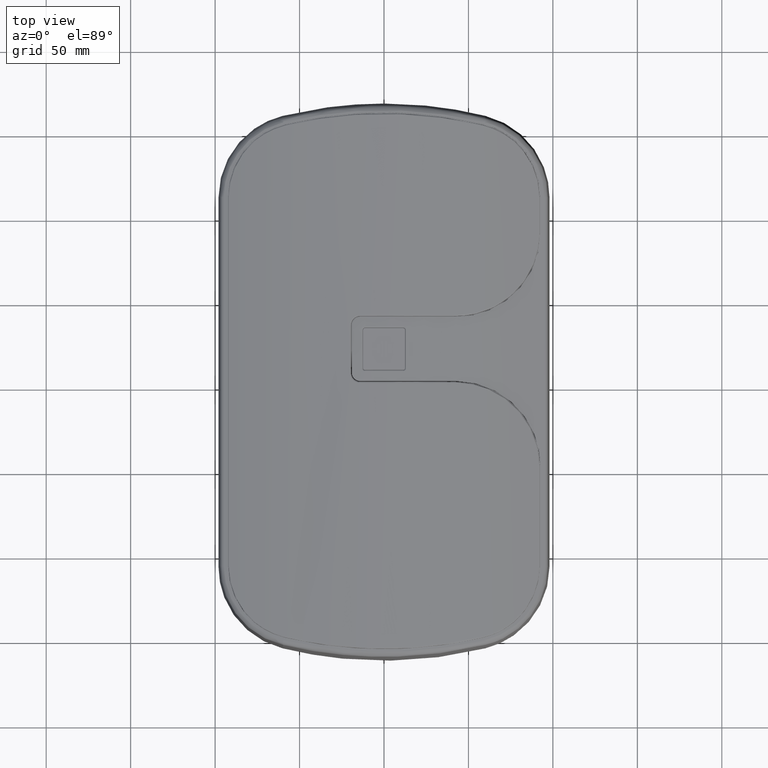
[diagram: clean part render]
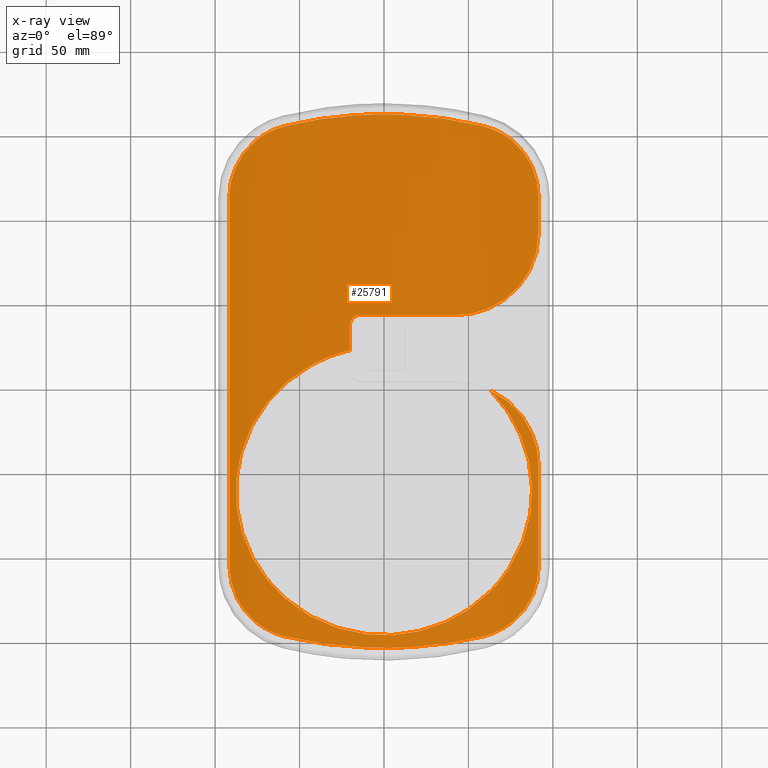
[diagram: x-ray — body ghosted, one internal face saturated and labeled with its STEP entity id]
A machine part, top view, then the same camera in x-ray: the body is ghosted and one INTERNAL B-rep face — a face not visible from any outside direction — is saturated and labeled: STEP entity #25791.
In plain terms, the highlighted cylindrical surface (partial cylindrical patch) has radius 337.833 mm, axis along (0, 1, 0).
Its self-contained STEP definition (entity closure, byte-faithful):
#27 = CARTESIAN_POINT ( 'NONE',  ( -53.74706944822145260, 204.0370876444105761, 271.7059698653604300 ) ) ;
#41 = CARTESIAN_POINT ( 'NONE',  ( -80.27009344487575504, -47.65358053697357832, 266.3253694623684282 ) ) ;
#220 = CARTESIAN_POINT ( 'NONE',  ( -69.23822527555425665, -65.71224149324173425, 268.8296598590451367 ) ) ;
#251 = LINE ( 'NONE', #11139, #5939 ) ;
#270 = CARTESIAN_POINT ( 'NONE',  ( 62.58174879903466348, 201.7702652836585742, 270.1539312274121016 ) ) ;
#307 = CARTESIAN_POINT ( 'NONE',  ( 34.49466185577441024, -103.9215585396100892, 274.2700590632432522 ) ) ;
#401 = CARTESIAN_POINT ( 'NONE',  ( -36.91261496806277620, -90.80231915876805715, 273.9790836819298079 ) ) ;
#449 = CARTESIAN_POINT ( 'NONE',  ( 73.85158288863185305, 195.9724514840335701, 267.8322497680517813 ) ) ;
#546 = CARTESIAN_POINT ( 'NONE',  ( 66.49775776920132841, -96.66909676452780786, 269.3943433726952321 ) ) ;
#567 = CARTESIAN_POINT ( 'NONE',  ( -85.83136295935342730, -30.79571017188451520, 264.9149081488314437 ) ) ;
#749 = CARTESIAN_POINT ( 'NONE',  ( -86.07190980307485972, -29.63990249051540715, 264.8515873546286912 ) ) ;
#842 = CARTESIAN_POINT ( 'NONE',  ( -90.70385272820610112, 169.5955526228462134, 263.5959263870672089 ) ) ;
#938 = CARTESIAN_POINT ( 'NONE',  ( -63.76464017039037913, 45.59081734517244655, 269.9288390383100023 ) ) ;
#950 = CARTESIAN_POINT ( 'NONE',  ( 83.74407078926418535, 185.8530056162774997, 265.4562836437885380 ) ) ;
#990 = CARTESIAN_POINT ( 'NONE',  ( 70.11340852722810268, 42.31222724711389560, 268.6457814819084433 ) ) ;
#994 = ORIENTED_EDGE ( 'NONE', *, *, #28157, .T. ) ;
#1029 = CARTESIAN_POINT ( 'NONE',  ( -90.85367999004685657, 168.8200033567497371, 263.5541092576534083 ) ) ;
#1072 = CARTESIAN_POINT ( 'NONE',  ( 90.85367998968413872, -65.25086367677704402, 263.5541092577544191 ) ) ;
#1115 = CARTESIAN_POINT ( 'NONE',  ( -81.18521424421790300, 19.20336135559985635, 266.1001581095189295 ) ) ;
#1125 = CARTESIAN_POINT ( 'NONE',  ( 85.02990563042834538, 183.9039057409635234, 265.1245309188169585 ) ) ;
#1157 = CARTESIAN_POINT ( 'NONE',  ( 85.25553267145542691, 25.86023900669822950, 265.0656403473748810 ) ) ;
#1241 = CARTESIAN_POINT ( 'NONE',  ( 91.56572772509358060, -57.41042204808604055, 263.3544256879343379 ) ) ;
#1285 = CARTESIAN_POINT ( 'NONE',  ( -59.56443233726582065, 49.67811987071961255, 270.7125174642668526 ) ) ;
#1463 = CARTESIAN_POINT ( 'NONE',  ( -41.15136140660537478, 62.40099889815630974, 273.4859903244442876 ) ) ;
#1529 = CARTESIAN_POINT ( 'NONE',  ( -67.28815158531976692, -96.27164303324067873, 269.2320092841373480 ) ) ;
#1535 = CARTESIAN_POINT ( 'NONE',  ( 89.90341903836998938, 127.0811989999519085, 263.8182846763886573 ) ) ;
#1590 = CARTESIAN_POINT ( 'NONE',  ( 91.21854066091509594, -62.91340004410175624, 263.4519983209237353 ) ) ;
#1668 = CARTESIAN_POINT ( 'NONE',  ( 69.80695161159522399, -64.99192384898256591, 268.7099725979641107 ) ) ;
#1708 = CARTESIAN_POINT ( 'NONE',  ( -89.79572599104329811, -69.77049970203609064, 263.8480326383339616 ) ) ;
#1747 = CARTESIAN_POINT ( 'NONE',  ( 58.50513940079486730, 202.9399856151209462, 270.8955499556117275 ) ) ;
#1844 = CARTESIAN_POINT ( 'NONE',  ( 87.67605788145903034, -15.22224533230448351, 264.4246475022592335 ) ) ;
#1882 = CARTESIAN_POINT ( 'NONE',  ( -90.88572384740898258, -65.19405038079695203, 263.5453186476307792 ) ) ;
#2015 = CARTESIAN_POINT ( 'NONE',  ( 39.28121413257887440, 206.7901729413931093, 273.7440293018799480 ) ) ;
#2030 = CARTESIAN_POINT ( 'NONE',  ( 69.07701921096267483, -65.91471381336033630, 268.8633759463381807 ) ) ;
#2069 = CARTESIAN_POINT ( 'NONE',  ( 42.66572772509357492, 90.92574022090867913, 273.2949955032302682 ) ) ;
#2200 = CARTESIAN_POINT ( 'NONE',  ( 73.27367271509984903, -60.25838212605629707, 267.9605284016247424 ) ) ;
#2232 = CARTESIAN_POINT ( 'NONE',  ( 91.24292409115955138, 133.3626333924264600, 263.4458065732030150 ) ) ;
#2287 = CARTESIAN_POINT ( 'NONE',  ( -20.20000000000001705, 84.82574022090871324, 275.3955520117681885 ) ) ;
#2370 = CARTESIAN_POINT ( 'NONE',  ( 86.64398230896529185, -26.47326430816557163, 264.7002995341148903 ) ) ;
#2537 = CARTESIAN_POINT ( 'NONE',  ( 48.94790482576656387, 205.0355696698422321, 272.4440179215015974 ) ) ;
#2550 = CARTESIAN_POINT ( 'NONE',  ( -59.55831610972629164, -76.03133296341901826, 270.7131626247677332 ) ) ;
#2640 = CARTESIAN_POINT ( 'NONE',  ( 53.74706944829397059, -100.4679479624122678, 271.7059698653485498 ) ) ;
#2727 = CARTESIAN_POINT ( 'NONE',  ( -79.27243529187633442, -49.80109244770816446, 266.5681108240744948 ) ) ;
#2895 = CARTESIAN_POINT ( 'NONE',  ( -33.64623261522633157, -92.20193239538593843, 274.3221299687944565 ) ) ;
#3076 = CARTESIAN_POINT ( 'NONE',  ( -18.92577245747721548, -96.73391702724221375, 275.4714652145117952 ) ) ;
#3261 = CARTESIAN_POINT ( 'NONE',  ( -51.25805964407292237, 56.26774456603389041, 272.0901842595215498 ) ) ;
#3307 = CARTESIAN_POINT ( 'NONE',  ( 90.97262977849405274, 9.441413196523122053, 263.5208574284290535 ) ) ;
#3435 = CARTESIAN_POINT ( 'NONE',  ( -86.51907128849531148, 1.020978634899184501, 264.7337298067117786 ) ) ;
#3472 = CARTESIAN_POINT ( 'NONE',  ( 80.38998510827673272, 21.09500650939922650, 266.2976060101473195 ) ) ;
#3482 = CARTESIAN_POINT ( 'NONE',  ( 76.44558683986733172, 37.25869609256205450, 267.2421184597365595 ) ) ;
#3521 = CARTESIAN_POINT ( 'NONE',  ( -90.19602994158624654, 171.8934266948662071, 263.7371824955851025 ) ) ;
#3596 = CARTESIAN_POINT ( 'NONE',  ( 69.49876340143889308, -95.12854159410592558, 268.7749557386763399 ) ) ;
#3605 = CARTESIAN_POINT ( 'NONE',  ( -19.58214104591394289, 87.53053512867326447, 275.4320286097359372 ) ) ;
#3617 = CARTESIAN_POINT ( 'NONE',  ( -82.89173227745227734, 14.80038228498785280, 265.6731187234751701 ) ) ;
#3655 = CARTESIAN_POINT ( 'NONE',  ( 82.98202226733469900, 14.49755309273467319, 265.6502478781277432 ) ) ;
#3665 = CARTESIAN_POINT ( 'NONE',  ( 65.20364680378175137, 45.28321700763112290, 269.6547918783453497 ) ) ;
#3699 = CARTESIAN_POINT ( 'NONE',  ( -68.75708112130223526, 199.0993433933143990, 268.9300504172041428 ) ) ;
#3801 = CARTESIAN_POINT ( 'NONE',  ( -80.98355858309885491, -46.02597887853938374, 266.1500209380036495 ) ) ;
#3812 = CARTESIAN_POINT ( 'NONE',  ( 91.13829885956346288, 167.2237046450084108, 263.4745251120192506 ) ) ;
#3848 = CARTESIAN_POINT ( 'NONE',  ( 84.05831509099790821, 27.86807680081794203, 265.3755713260433708 ) ) ;
#3877 = CARTESIAN_POINT ( 'NONE',  ( -73.79442259943718341, 196.0136567635633753, 267.8450365293340383 ) ) ;
#3932 = CARTESIAN_POINT ( 'NONE',  ( 90.19602994086538672, -68.32428701574579577, 263.7371824957850208 ) ) ;
#3964 = CARTESIAN_POINT ( 'NONE',  ( -15.68850503784546113, 90.72895375185825628, 275.6357575940354536 ) ) ;
#3973 = CARTESIAN_POINT ( 'NONE',  ( -83.65313203425958477, 12.54906412256395321, 265.4794664769616475 ) ) ;
#3983 = CARTESIAN_POINT ( 'NONE',  ( 5.679558675216478833E-14, 90.92574022090882124, -61.83333333335095006 ) ) ;
#4000 = VERTEX_POINT ( 'NONE', #19608 ) ;
#4102 = CARTESIAN_POINT ( 'NONE',  ( 88.21857332752958314, -74.20899075235408304, 264.2790693325037523 ) ) ;
#4215 = CARTESIAN_POINT ( 'NONE',  ( -64.17529061634368759, -97.62018091236404871, 269.8495742570035532 ) ) ;
#4220 = CARTESIAN_POINT ( 'NONE',  ( -91.47828100686480468, -60.55116979478542305, 263.3790840023913233 ) ) ;
#4279 = CARTESIAN_POINT ( 'NONE',  ( 91.47750610703808150, -60.56566939227580804, 263.3793034784064844 ) ) ;
#4345 = FACE_OUTER_BOUND ( 'NONE', #30641, .T. ) ;
#4361 = CARTESIAN_POINT ( 'NONE',  ( 80.89147984355182075, -46.27226208648189498, 266.1732406312019634 ) ) ;
#4395 = CARTESIAN_POINT ( 'NONE',  ( 91.56572772509359481, 139.8257402209087275, 263.3544256879345085 ) ) ;
#4518 = CARTESIAN_POINT ( 'NONE',  ( 87.13767386128418480, -22.92507111882835602, 264.5688771192021704 ) ) ;
#4604 = CARTESIAN_POINT ( 'NONE',  ( -24.63788211001995521, -105.0903052391960699, 275.1361441130208050 ) ) ;
#4689 = CARTESIAN_POINT ( 'NONE',  ( 74.84509055240809516, -57.78530735255991146, 267.6050939316245945 ) ) ;
#4725 = CARTESIAN_POINT ( 'NONE',  ( 49.08647432338983663, 91.24318271763556254, 272.4300490301756668 ) ) ;
#4779 = B_SPLINE_CURVE_WITH_KNOTS ( 'NONE', 3,
 ( #25317, #32918, #8963, #3812, #33630, #11295, #12011, #6116, #33094, #9315, #20199, #1125, #30986, #950, #5935, #28153, #6643, #8603 ),
 .UNSPECIFIED., .F., .F.,
 ( 4, 2, 2, 2, 2, 2, 2, 2, 4 ),
 ( 0.0000000000000000000, 0.004683272360364892917, 0.009366544720729785833, 0.01404981708109467702, 0.01873308944145957167, 0.02341636180182446458, 0.02575799798200691104, 0.02809963416218935403, 0.03746617888291894904 ),
 .UNSPECIFIED. ) ;
#4782 = CARTESIAN_POINT ( 'NONE',  ( -4.893291247400136434, -106.2051610488936149, 275.9736078036523281 ) ) ;
#4864 = CARTESIAN_POINT ( 'NONE',  ( 68.13911166815064746, -67.05159128257736256, 269.0570703650793121 ) ) ;
#4899 = CARTESIAN_POINT ( 'NONE',  ( -91.56572772513064251, -58.98726588604014864, 263.3544256879237651 ) ) ;
#5022 = CARTESIAN_POINT ( 'NONE',  ( -27.17280675187370065, 208.3546538594332276, 274.9143502901891338 ) ) ;
#5032 = CARTESIAN_POINT ( 'NONE',  ( -91.56572772509491642, 160.9795617300077026, 263.3544256879339400 ) ) ;
#5034 = CARTESIAN_POINT ( 'NONE',  ( 87.65950437468654854, -15.81737789249209847, 264.4290955139598509 ) ) ;
#5212 = CARTESIAN_POINT ( 'NONE',  ( -75.32020729897661226, -57.03075603149176942, 267.4972618048938102 ) ) ;
#5401 = CARTESIAN_POINT ( 'NONE',  ( -62.95061792932298061, -72.76761473843301076, 270.0842416263683958 ) ) ;
#5486 = CARTESIAN_POINT ( 'NONE',  ( 4.991273347895599954, -106.2389850009631829, 275.9992770220115403 ) ) ;
#5572 = CARTESIAN_POINT ( 'NONE',  ( -69.96589631247307750, -64.78668957013321972, 268.6763700069635092 ) ) ;
#5624 = CARTESIAN_POINT ( 'NONE',  ( 67.28815158467595836, 199.8407827155958500, 269.2320092842682016 ) ) ;
#5748 = CARTESIAN_POINT ( 'NONE',  ( -54.14429885798384134, -80.53122133677730687, 271.6380780778695225 ) ) ;
#5826 = CARTESIAN_POINT ( 'NONE',  ( -75.14887604803774934, 195.0074485130353992, 267.5384594181460329 ) ) ;
#5896 = CARTESIAN_POINT ( 'NONE',  ( 91.56572772509358060, 160.9795617301407447, 263.3544256879344516 ) ) ;
#5925 = CARTESIAN_POINT ( 'NONE',  ( -42.22360923702587598, -88.20904077012473010, 273.3574530336889552 ) ) ;
#5935 = CARTESIAN_POINT ( 'NONE',  ( 83.29250000633804518, 186.4869956932949151, 265.5715410188037140 ) ) ;
#5939 = VECTOR ( 'NONE', #32939, 1000.000000000000000 ) ;
#6105 = CARTESIAN_POINT ( 'NONE',  ( -85.55218984020675066, 5.661531779773783413, 264.9880272878637584 ) ) ;
#6116 = CARTESIAN_POINT ( 'NONE',  ( 88.80571703832795549, 176.2955923794112891, 264.1193766856786169 ) ) ;
#6130 = VERTEX_POINT ( 'NONE', #33158 ) ;
#6138 = CARTESIAN_POINT ( 'NONE',  ( 78.85945107579956925, 24.28364620894998183, 266.6675396858788076 ) ) ;
#6147 = CARTESIAN_POINT ( 'NONE',  ( 91.56572772509360902, 4.189406664520616275, 263.3544256879344516 ) ) ;
#6198 = EDGE_CURVE ( 'Defeatured_0_13+Defeatured_0_77+Defeatured_0_12+Defeatured_0_14', #31869, #26550, #23291, .T. ) ;
#6228 = EDGE_CURVE ( 'Defeatured_0_77+Defeatured_0_5+Defeatured_0_6+Defeatured_0_4', #19888, #27480, #6720, .T. ) ;
#6275 = CARTESIAN_POINT ( 'NONE',  ( -66.15732814866886713, 43.01614035674500514, 269.4599210959094648 ) ) ;
#6308 = CARTESIAN_POINT ( 'NONE',  ( 74.86217139394872788, 31.46885490046553358, 267.6033277512984228 ) ) ;
#6321 = CARTESIAN_POINT ( 'NONE',  ( 84.96596848720670891, 26.36634419489534764, 265.1410401390153879 ) ) ;
#6349 = CARTESIAN_POINT ( 'NONE',  ( -59.32885911521010058, 202.7428640095405967, 270.7507115692383195 ) ) ;
#6446 = CARTESIAN_POINT ( 'NONE',  ( -19.99596190985421629, 86.40298918682044871, 275.4077169562641529 ) ) ;
#6456 = CARTESIAN_POINT ( 'NONE',  ( -81.67468914599901098, -44.37158372516172022, 265.9788561579103430 ) ) ;
#6494 = CARTESIAN_POINT ( 'NONE',  ( 84.08914844103414055, 11.10916848380760413, 265.3676627928619496 ) ) ;
#6504 = CARTESIAN_POINT ( 'NONE',  ( 88.06735746138086540, 20.13605546704555493, 264.3207766532581218 ) ) ;
#6588 = CARTESIAN_POINT ( 'NONE',  ( 88.79009530593224042, -72.76784468111569026, 264.1236313479134878 ) ) ;
#6622 = CARTESIAN_POINT ( 'NONE',  ( -16.80144964380122019, 90.29857744834507116, 275.5819944254946563 ) ) ;
#6633 = CARTESIAN_POINT ( 'NONE',  ( -61.28587946963676103, 48.08286225718151030, 270.3988611565729343 ) ) ;
#6643 = CARTESIAN_POINT ( 'NONE',  ( 78.85824356827156123, 191.8363355657427007, 266.6762665590562165 ) ) ;
#6700 = CARTESIAN_POINT ( 'NONE',  ( -60.15271448405430021, -98.95445378873043296, 270.6026665101210824 ) ) ;
#6720 = B_SPLINE_CURVE_WITH_KNOTS ( 'NONE', 3,
 ( #21118, #4899, #4220, #15254, #1882, #10251, #1708, #23425, #23775, #34197, #10428, #15589, #34546, #34707, #7569, #6869, #26242, #12417 ),
 .UNSPECIFIED., .F., .F.,
 ( 4, 2, 2, 2, 2, 2, 2, 2, 4 ),
 ( 0.0000000000000000000, 0.004683272360139123860, 0.009366544720278268538, 0.01404981708041741321, 0.01873308944055655789, 0.02341636180069570430, 0.02575799798076529659, 0.02809963416083489235, 0.03746617888111323375 ),
 .UNSPECIFIED. ) ;
#6799 = CARTESIAN_POINT ( 'NONE',  ( -87.64718835255041540, -10.12862857150454765, 264.4324046935332717 ) ) ;
#6833 = CARTESIAN_POINT ( 'NONE',  ( 69.36346442661799472, 39.20499452976743271, 268.8033405316411972 ) ) ;
#6869 = CARTESIAN_POINT ( 'NONE',  ( -80.96173275720177287, -86.01319947556544321, 266.1609624584682479 ) ) ;
#6887 = VECTOR ( 'NONE', #23045, 1000.000000000000000 ) ;
#6929 = CARTESIAN_POINT ( 'NONE',  ( 83.70338207643429485, -82.37807684165501598, 265.4677915406781494 ) ) ;
#6973 = CARTESIAN_POINT ( 'NONE',  ( -42.19424518655691969, 61.85071138486541287, 273.3563047467984575 ) ) ;
#7015 = CARTESIAN_POINT ( 'NONE',  ( 86.98948326386125984, -24.11332999323908766, 264.6084269631338657 ) ) ;
#7051 = CARTESIAN_POINT ( 'NONE',  ( -71.02620619321572804, -94.27010349196206107, 268.4524989552040211 ) ) ;
#7056 = CARTESIAN_POINT ( 'NONE',  ( 74.90448350035875080, 102.9212562315935315, 267.5995399941959363 ) ) ;
#7117 = CARTESIAN_POINT ( 'NONE',  ( 84.57239718080977298, -81.09464043351748330, 265.2439702954558811 ) ) ;
#7199 = CARTESIAN_POINT ( 'NONE',  ( 87.45570764139198161, -6.342040897407058786, 264.4838937448431579 ) ) ;
#7209 = EDGE_CURVE ( 'Defeatured_0_77+Defeatured_0_8+Defeatured_0_9+Defeatured_0_7', #20845, #14442, #22854, .T. ) ;
#7234 = CARTESIAN_POINT ( 'NONE',  ( 80.88145127694258463, 109.3067323599672136, 266.1755500591401074 ) ) ;
#7283 = CARTESIAN_POINT ( 'NONE',  ( -39.28121413245377624, -103.2210332595340674, 273.7440293018944999 ) ) ;
#7327 = CARTESIAN_POINT ( 'NONE',  ( -48.30776159761145294, 58.25303065308030170, 272.5298165747108214 ) ) ;
#7364 = CARTESIAN_POINT ( 'NONE',  ( 80.16875725867798508, -47.89049707530934796, 266.3504601749081644 ) ) ;
#7397 = CARTESIAN_POINT ( 'NONE',  ( 88.09634279112127331, 121.7173299809239637, 264.3115705470307262 ) ) ;
#7496 = CARTESIAN_POINT ( 'NONE',  ( -29.32947695726051052, 67.60478959064636229, 274.7528582478652766 ) ) ;
#7508 = CARTESIAN_POINT ( 'NONE',  ( 58.50511100478109228, -99.37084960282585655, 270.8955549488188694 ) ) ;
#7521 = CARTESIAN_POINT ( 'NONE',  ( -17.34051517175010915, 209.2246397476945674, 275.5637297152247811 ) ) ;
#7534 = CARTESIAN_POINT ( 'NONE',  ( 86.11268246516650038, -29.39978508835664783, 264.8407860353065075 ) ) ;
#7557 = EDGE_CURVE ( 'Defeatured_0_77+Defeatured_0_20+Defeatured_0_1+Defeatured_0_19', #19215, #14226, #251, .T. ) ;
#7569 = CARTESIAN_POINT ( 'NONE',  ( -83.29250000711847690, -82.91785601029229724, 265.5715410186047620 ) ) ;
#7697 = CARTESIAN_POINT ( 'NONE',  ( -56.12935378610605852, 203.5006686065477481, 271.3132933854096791 ) ) ;
#7709 = CARTESIAN_POINT ( 'NONE',  ( 85.74978669763386563, -31.13636464560996586, 264.9362357209445236 ) ) ;
#7783 = LINE ( 'NONE', #21325, #17813 ) ;
#7796 = CARTESIAN_POINT ( 'NONE',  ( 56.12935378617348903, -99.93152892453147729, 271.3132933853983104 ) ) ;
#7880 = CARTESIAN_POINT ( 'NONE',  ( -48.36102979187698025, -84.59673965366891935, 272.5264335724344278 ) ) ;
#7967 = CARTESIAN_POINT ( 'NONE',  ( 46.56529090673573990, -101.9234296039889642, 272.7842572181665446 ) ) ;
#8058 = CARTESIAN_POINT ( 'NONE',  ( 4.049675607185612591, -98.64741564921206418, 275.9762563501681711 ) ) ;
#8231 = CARTESIAN_POINT ( 'NONE',  ( -1.357478944067622887E-14, -173.1742597790910736, -61.83333333335105664 ) ) ;
#8244 = CARTESIAN_POINT ( 'NONE',  ( 32.34827235306048010, -92.71657654771107104, 274.4495889213341684 ) ) ;
#8329 = EDGE_CURVE ( 'Defeatured_0_77+Defeatured_0_3+Defeatured_0_4+Defeatured_0_2', #26345, #33184, #27403, .T. ) ;
#8402 = CARTESIAN_POINT ( 'NONE',  ( 73.79442259284144257, -92.44451708636576370, 267.8450365308078176 ) ) ;
#8421 = CARTESIAN_POINT ( 'NONE',  ( -73.43903297169710243, -60.01360446868878284, 267.9237335955209574 ) ) ;
#8471 = CARTESIAN_POINT ( 'NONE',  ( 58.50513940079486730, 202.9399856151209462, 270.8955499556117275 ) ) ;
#8484 = DIRECTION ( 'NONE',  ( -2.664535259100380529E-16, -1.000000000000000000, -4.287526199837193771E-16 ) ) ;
#8496 = CARTESIAN_POINT ( 'NONE',  ( -69.49876340641318961, 198.6976812733538509, 268.7749557376314442 ) ) ;
#8573 = CARTESIAN_POINT ( 'NONE',  ( 60.14567077256270267, -98.95633209745261638, 270.6039315236905622 ) ) ;
#8594 = CARTESIAN_POINT ( 'NONE',  ( -32.54653811952189812, -92.63892594082795995, 274.4304363296482734 ) ) ;
#8603 = CARTESIAN_POINT ( 'NONE',  ( 76.50873261448792562, 193.8644776227424416, 267.2225536239882899 ) ) ;
#8772 = CARTESIAN_POINT ( 'NONE',  ( -86.88800179122290501, -1.316301044171659385, 264.6355224517834586 ) ) ;
#8827 = CARTESIAN_POINT ( 'NONE',  ( 76.50873261448792562, 193.8644776227424416, 267.2225536239882899 ) ) ;
#8953 = CARTESIAN_POINT ( 'NONE',  ( -70.64538428570438100, 37.54791496518735983, 268.5318279542219670 ) ) ;
#8963 = CARTESIAN_POINT ( 'NONE',  ( 91.47828100685561026, 164.1203094768792141, 263.3790840023941655 ) ) ;
#9033 = CARTESIAN_POINT ( 'NONE',  ( -87.24162632792804573, 179.8934668792239790, 264.5412573321941636 ) ) ;
#9110 = CARTESIAN_POINT ( 'NONE',  ( 91.56572772509358060, 1.825740220908757649, 263.3544256879343379 ) ) ;
#9123 = CARTESIAN_POINT ( 'NONE',  ( -85.81054252826950801, 4.507313510848276472, 264.9202890425315786 ) ) ;
#9169 = EDGE_CURVE ( 'Defeatured_0_77+Defeatured_0_14+Defeatured_0_15+Defeatured_0_13', #4000, #26550, #34871, .T. ) ;
#9171 = CARTESIAN_POINT ( 'NONE',  ( 90.17027594054053452, 13.48398008308925533, 263.7442325749222505 ) ) ;
#9200 = CARTESIAN_POINT ( 'NONE',  ( -71.67968147742564611, 197.4062181842656400, 268.3089165940916132 ) ) ;
#9303 = CARTESIAN_POINT ( 'NONE',  ( -80.49994905200725270, 20.82447332420325381, 266.2695769822324223 ) ) ;
#9315 = CARTESIAN_POINT ( 'NONE',  ( 86.94283208836831989, 180.5424979476630938, 264.6214915475873113 ) ) ;
#9485 = CARTESIAN_POINT ( 'NONE',  ( -85.14541780208460864, 7.391570712710240798, 265.0944338575301913 ) ) ;
#9682 = CARTESIAN_POINT ( 'NONE',  ( 60.24003002392612416, -75.37744464657957622, 270.5869737928272798 ) ) ;
#9714 = CARTESIAN_POINT ( 'NONE',  ( -61.77719347171206010, -98.46781066302179397, 270.3046220684484524 ) ) ;
#9848 = VECTOR ( 'NONE', #8484, 1000.000000000000000 ) ;
#9867 = CARTESIAN_POINT ( 'NONE',  ( 86.93588279726340318, -1.646071153877466386, 264.6227674969426857 ) ) ;
#9907 = CARTESIAN_POINT ( 'NONE',  ( 59.91775700484000566, 94.04271335045925184, 270.6473988552901346 ) ) ;
#10011 = CARTESIAN_POINT ( 'NONE',  ( -20.19999794263027582, 70.09056555015575896, 275.3954891992256080 ) ) ;
#10052 = CARTESIAN_POINT ( 'NONE',  ( 87.70396513528930882, -12.25205891557066806, 264.4171479681502888 ) ) ;
#10138 = CARTESIAN_POINT ( 'NONE',  ( -19.72256478181009243, -105.5227467311307521, 275.4600780460808664 ) ) ;
#10222 = CARTESIAN_POINT ( 'NONE',  ( 76.21455492379789121, -55.51649287644827524, 267.2908466953348352 ) ) ;
#10251 = CARTESIAN_POINT ( 'NONE',  ( -90.21588576902684053, -68.24871531288350468, 263.7316769474503531 ) ) ;
#10357 = VERTEX_POINT ( 'NONE', #5896 ) ;
#10389 = CARTESIAN_POINT ( 'NONE',  ( 85.57309987017960395, 5.523999126391429648, 264.9825275040212773 ) ) ;
#10428 = CARTESIAN_POINT ( 'NONE',  ( -86.22218323504525017, -78.33978242746191256, 264.8129144275586668 ) ) ;
#10487 = CARTESIAN_POINT ( 'NONE',  ( 27.17280675197702067, -104.7855141775091568, 274.9143502901806073 ) ) ;
#10575 = CARTESIAN_POINT ( 'NONE',  ( -46.35196303794252515, -85.85351390821679729, 272.8115410706729449 ) ) ;
#10646 = DIRECTION ( 'NONE',  ( 2.664535259100380529E-16, 1.000000000000000000, 4.287526199837193771E-16 ) ) ;
#10732 = CARTESIAN_POINT ( 'NONE',  ( 56.12836851484541256, 203.5009611032321857, 271.3134668446291471 ) ) ;
#10744 = CARTESIAN_POINT ( 'NONE',  ( 22.20697992789438757, -95.98906034322978087, 275.2770404972721394 ) ) ;
#10920 = CARTESIAN_POINT ( 'NONE',  ( 33.45730278275795655, -92.27921636610788880, 274.3409983808403467 ) ) ;
#10980 = EDGE_CURVE ( 'Defeatured_0_77+Defeatured_0_4+Defeatured_0_5+Defeatured_0_3', #27480, #26345, #14677, .T. ) ;
#11032 = EDGE_CURVE ( 'Defeatured_0_77+Defeatured_0_11+Defeatured_0_12+Defeatured_0_10', #10357, #31140, #4779, .T. ) ;
#11109 = CARTESIAN_POINT ( 'NONE',  ( 46.13327051482792740, -85.99273632999894801, 272.8416541954244963 ) ) ;
#11139 = CARTESIAN_POINT ( 'NONE',  ( 91.56572772509358060, -173.1742597790912157, 263.3544256879342811 ) ) ;
#11158 = CARTESIAN_POINT ( 'NONE',  ( 61.77719347158505059, 202.0369503451678099, 270.3046220684722130 ) ) ;
#11172 = CARTESIAN_POINT ( 'NONE',  ( -91.56572772509360902, -173.1742597790912157, 263.3544256879342811 ) ) ;
#11283 = CARTESIAN_POINT ( 'NONE',  ( 52.02466080356382605, -82.10677872347244488, 271.9759925319776812 ) ) ;
#11295 = CARTESIAN_POINT ( 'NONE',  ( 90.21588576889531907, 171.8178549953383367, 263.7316769474867897 ) ) ;
#11354 = CARTESIAN_POINT ( 'NONE',  ( -58.50513940065408747, -99.37084593322023807, 270.8955499556363407 ) ) ;
#11450 = CARTESIAN_POINT ( 'NONE',  ( -86.50407775839184410, -27.31797967188671805, 264.7374179491700943 ) ) ;
#11498 = CARTESIAN_POINT ( 'NONE',  ( 91.39524898522405749, 6.534023522894248259, 263.4025700311728428 ) ) ;
#11538 = CARTESIAN_POINT ( 'NONE',  ( -88.21857332928117046, 177.7781304300864633, 264.2790693320292803 ) ) ;
#11641 = CARTESIAN_POINT ( 'NONE',  ( -75.60118810799235689, 30.20609458336087982, 267.4323910957349426 ) ) ;
#11697 = B_SPLINE_CURVE_WITH_KNOTS ( 'NONE', 3,
 ( #22881, #3665, #14537, #990, #33664, #19880, #30659, #3482, #20054, #14180, #22537, #3848, #25525, #6321, #1157, #20235, #25174, #6504, #31020, #11873, #9171, #33129, #22349, #19702, #3307, #11498, #6147, #28191 ),
 .UNSPECIFIED., .F., .F.,
 ( 4, 2, 2, 2, 2, 2, 2, 2, 2, 2, 2, 2, 2, 4 ),
 ( 0.02122758507623272520, 0.02821353860506632671, 0.03170651536948312921, 0.03519949213389993170, 0.04218544566273359220, 0.04917139919156725270, 0.05091788757377566088, 0.05266437595598406907, 0.05615735272040089932, 0.06314330624923457369, 0.06663628301365143169, 0.06838277139585983988, 0.07012925977806824807, 0.07711521330690185305 ),
 .UNSPECIFIED. ) ;
#11734 = CARTESIAN_POINT ( 'NONE',  ( -91.56572772508353353, 162.5614668244132019, 263.3544256879372938 ) ) ;
#11827 = CARTESIAN_POINT ( 'NONE',  ( -54.11960678314621731, 54.17050411726577153, 271.6382688240548759 ) ) ;
#11862 = CARTESIAN_POINT ( 'NONE',  ( 73.57912296873178093, 33.45389293996107227, 267.8929978133383543 ) ) ;
#11873 = CARTESIAN_POINT ( 'NONE',  ( 89.87745839669136672, 14.61712502727041318, 263.8252634468659608 ) ) ;
#11913 = CARTESIAN_POINT ( 'NONE',  ( -91.11103357231202438, 167.2630619154049327, 263.4821420517480419 ) ) ;
#12001 = CARTESIAN_POINT ( 'NONE',  ( -87.45587116653234716, -6.596183158893191845, 264.4837565747475310 ) ) ;
#12011 = CARTESIAN_POINT ( 'NONE',  ( 89.79572599087238416, 173.3396393845596890, 263.8480326383811416 ) ) ;
#12176 = CARTESIAN_POINT ( 'NONE',  ( -84.40809251137896752, -36.52836502722338707, 265.2862127298010932 ) ) ;
#12207 = VERTEX_POINT ( 'NONE', #1747 ) ;
#12285 = AXIS2_PLACEMENT_3D ( 'NONE', #8231, #29538, #15717 ) ;
#12385 = CARTESIAN_POINT ( 'NONE',  ( 70.43930263986115392, 37.80643733409181095, 268.5750500118281252 ) ) ;
#12412 = CARTESIAN_POINT ( 'NONE',  ( -62.58174879923371492, -98.20112560147433101, 270.1539312273749260 ) ) ;
#12417 = CARTESIAN_POINT ( 'NONE',  ( -76.50873261587983620, -90.29533793966703570, 267.2225536236646235 ) ) ;
#12515 = ORIENTED_EDGE ( 'NONE', *, *, #10980, .T. ) ;
#12547 = CARTESIAN_POINT ( 'NONE',  ( 67.37748127282014821, -67.95573352921292098, 269.2129989886534531 ) ) ;
#12584 = CARTESIAN_POINT ( 'NONE',  ( 86.54807071727937284, 118.0111835976166788, 264.7282042571448528 ) ) ;
#12642 = CARTESIAN_POINT ( 'NONE',  ( 91.56572772508344826, -58.99232714288877588, 263.3544256879371801 ) ) ;
#12680 = CARTESIAN_POINT ( 'NONE',  ( -35.85601439720429084, 64.95642755221615516, 274.0989332179801181 ) ) ;
#12719 = CARTESIAN_POINT ( 'NONE',  ( 91.56572772509358060, -173.1742597790912157, 263.3544256879342811 ) ) ;
#12723 = CARTESIAN_POINT ( 'NONE',  ( 86.57577907298178843, 0.6911142924291299172, 264.7186972982126463 ) ) ;
#12900 = CARTESIAN_POINT ( 'NONE',  ( 2.421871357791895552, 209.8096200891273213, 276.0003561201255025 ) ) ;
#12914 = CARTESIAN_POINT ( 'NONE',  ( 79.15724295614022310, -50.03368109462298463, 266.5959023468104192 ) ) ;
#12968 = ORIENTED_EDGE ( 'NONE', *, *, #35046, .T. ) ;
#13057 = CARTESIAN_POINT ( 'NONE',  ( -9.931870069484643793, 209.6618605539979683, 275.8901646712936326 ) ) ;
#13071 = CARTESIAN_POINT ( 'NONE',  ( 81.99458575423993523, -43.54447067779982916, 265.8987204226130530 ) ) ;
#13102 = CARTESIAN_POINT ( 'NONE',  ( 85.03498524523655533, 115.2027512377191130, 265.1281375601018908 ) ) ;
#13245 = CARTESIAN_POINT ( 'NONE',  ( -65.38943946861661516, -70.21243461480969472, 269.6123355191063524 ) ) ;
#13317 = B_SPLINE_CURVE_WITH_KNOTS ( 'NONE', 3,
 ( #25603, #34079, #20139, #6929, #7117, #30927, #15142, #22966, #22790, #4102, #6588, #18162, #3932, #25957, #1072, #33578, #1590, #4279, #12642, #1241 ),
 .UNSPECIFIED., .F., .F.,
 ( 4, 2, 2, 2, 2, 2, 2, 2, 2, 4 ),
 ( 9.229300043491511337E-06, 0.009362814062792356937, 0.01403960644416679150, 0.01637800263485400531, 0.01871639882554121739, 0.02339319120691562073, 0.02806998358829002407, 0.03040837977897721534, 0.03274677596966439619, 0.03742356835103877177 ),
 .UNSPECIFIED. ) ;
#13421 = CARTESIAN_POINT ( 'NONE',  ( 9.836878294848240500, 209.6314975906192331, 275.8658073303217293 ) ) ;
#13434 = CARTESIAN_POINT ( 'NONE',  ( -52.25755743167161427, -81.93479573915855951, 271.9396293510124565 ) ) ;
#13604 = CARTESIAN_POINT ( 'NONE',  ( 5.840450183253506289, -98.54967993042592411, 275.9500368424781982 ) ) ;
#13774 = CARTESIAN_POINT ( 'NONE',  ( -67.73926638897978592, -67.53986893867107710, 269.1399868834691915 ) ) ;
#13826 = CARTESIAN_POINT ( 'NONE',  ( 64.96525800941206796, 200.8746054454111061, 269.6957084299155554 ) ) ;
#13865 = CARTESIAN_POINT ( 'NONE',  ( 9.931870069594667783, -106.0927208720572992, 275.8901646712900515 ) ) ;
#13958 = CARTESIAN_POINT ( 'NONE',  ( -22.39201118762460041, -95.91218970402847788, 275.2590824229682198 ) ) ;
#14099 = ORIENTED_EDGE ( 'NONE', *, *, #9169, .T. ) ;
#14134 = CARTESIAN_POINT ( 'NONE',  ( -80.74986883382867120, -46.56928725127229995, 266.2076409450734786 ) ) ;
#14180 = CARTESIAN_POINT ( 'NONE',  ( 81.08884162109235660, 32.15989883831119300, 266.1275917699659885 ) ) ;
#14216 = CARTESIAN_POINT ( 'NONE',  ( -91.47750610708496311, 164.1348090733974914, 263.3793034783934104 ) ) ;
#14226 = VERTEX_POINT ( 'NONE', #9110 ) ;
#14306 = CARTESIAN_POINT ( 'NONE',  ( -79.76422001394496419, 22.42340347157692904, 266.4490280450523869 ) ) ;
#14380 = CARTESIAN_POINT ( 'NONE',  ( -62.56333466040234015, 201.7764632652663863, 270.1573918568010981 ) ) ;
#14391 = CARTESIAN_POINT ( 'NONE',  ( -88.79009530739162415, 176.3369843591613630, 264.1236313475156976 ) ) ;
#14442 = VERTEX_POINT ( 'NONE', #26286 ) ;
#14465 = CARTESIAN_POINT ( 'NONE',  ( 71.67968147159383818, -93.83707850599263622, 268.3089165953570614 ) ) ;
#14474 = CARTESIAN_POINT ( 'NONE',  ( -19.39484669403856643, 87.88079998384381497, 275.4428889705810661 ) ) ;
#14485 = CARTESIAN_POINT ( 'NONE',  ( -81.84730367390085348, 17.57454147581356807, 265.9355310286720169 ) ) ;
#14537 = CARTESIAN_POINT ( 'NONE',  ( 67.21494005200796096, 44.17936375755361667, 269.2518672389549010 ) ) ;
#14666 = CARTESIAN_POINT ( 'NONE',  ( -87.62367000380611159, -9.541285932259578217, 264.4387226557028043 ) ) ;
#14677 = B_SPLINE_CURVE_WITH_KNOTS ( 'NONE', 3,
 ( #17406, #28213, #33686, #7051, #17738, #1529, #31041, #28551, #4215, #12412, #9714, #6700, #17573, #31373 ),
 .UNSPECIFIED., .F., .F.,
 ( 4, 2, 2, 2, 2, 2, 4 ),
 ( 3.048439498014971126E-06, 0.005164626180212913455, 0.01032620392092781225, 0.01290699279128527249, 0.01548778166164273100, 0.01806857053200018950, 0.02064935940235764975 ),
 .UNSPECIFIED. ) ;
#14702 = CARTESIAN_POINT ( 'NONE',  ( 63.11240901142844706, 46.24581704732344889, 270.0526293603566046 ) ) ;
#14740 = CARTESIAN_POINT ( 'NONE',  ( -58.50511100471010906, 202.9399892848238096, 270.8955549488315455 ) ) ;
#14805 = ORIENTED_EDGE ( 'NONE', *, *, #25823, .T. ) ;
#14835 = CARTESIAN_POINT ( 'NONE',  ( -82.11063482211054065, -43.26300314616542408, 265.8698625333632890 ) ) ;
#14845 = DIRECTION ( 'NONE',  ( 2.465190328815662439E-32, 1.000000000000000000, 4.287526199837192785E-16 ) ) ;
#15082 = CARTESIAN_POINT ( 'NONE',  ( 62.84397703302791172, 95.25493903272747787, 270.1067357030012204 ) ) ;
#15142 = CARTESIAN_POINT ( 'NONE',  ( 86.16587460275529509, -78.40141133354769920, 264.8269579466925165 ) ) ;
#15207 = CYLINDRICAL_SURFACE ( 'NONE', #12285, 337.8333333333339965 ) ;
#15220 = CARTESIAN_POINT ( 'NONE',  ( 57.58539764246492609, -77.72664737007104918, 271.0571895223982892 ) ) ;
#15254 = CARTESIAN_POINT ( 'NONE',  ( -91.13829885960649335, -63.65456496276728160, 263.4745251120069724 ) ) ;
#15380 = CARTESIAN_POINT ( 'NONE',  ( 76.06500295834862868, -55.77188104847324013, 267.3254435729671172 ) ) ;
#15539 = CARTESIAN_POINT ( 'NONE',  ( 4.893291247515620945, 209.7743007308299070, 275.9736078036507365 ) ) ;
#15553 = CARTESIAN_POINT ( 'NONE',  ( 71.93576836832043853, -62.18368998883680376, 268.2556126390206259 ) ) ;
#15589 = CARTESIAN_POINT ( 'NONE',  ( -85.02990563103831789, -80.33476605802952974, 265.1245309186583086 ) ) ;
#15590 = EDGE_CURVE ( 'Defeatured_0_77+Defeatured_0_7+Defeatured_0_8+Defeatured_0_6', #14442, #28356, #30509, .T. ) ;
#15646 = CARTESIAN_POINT ( 'NONE',  ( -53.74287112045258397, -100.4693571182758660, 271.7066923794901641 ) ) ;
#15717 = DIRECTION ( 'NONE',  ( 1.000000000000000000, -2.464727977707545446E-16, 6.161819944268863614E-17 ) ) ;
#15729 = CARTESIAN_POINT ( 'NONE',  ( 75.61061926082071238, -56.53548197680754583, 267.4301169835300698 ) ) ;
#15753 = B_SPLINE_CURVE_WITH_KNOTS ( 'NONE', 3,
 ( #27591, #22817, #8573, #22114, #22467, #17126, #546, #27940, #3596, #22281, #14465, #8402, #19275, #30052 ),
 .UNSPECIFIED., .F., .F.,
 ( 4, 2, 2, 2, 2, 2, 4 ),
 ( 0.0001366384365771853074, 0.002706470140754542886, 0.005276301844931901089, 0.01041596525328661663, 0.01298579695746400822, 0.01555562866164139982, 0.02069529206999612056 ),
 .UNSPECIFIED. ) ;
#15766 = CARTESIAN_POINT ( 'NONE',  ( 91.56572772509360902, 136.5652971691275468, 263.3544256879345653 ) ) ;
#15894 = CARTESIAN_POINT ( 'NONE',  ( 64.44007390629619181, -71.23287536161618050, 269.7982957649300033 ) ) ;
#16068 = CARTESIAN_POINT ( 'NONE',  ( -77.09096000429094886, -53.98283090411414520, 267.0867617213725680 ) ) ;
#16162 = CARTESIAN_POINT ( 'NONE',  ( -2.421871357677186865, -106.2404804071870217, 276.0003561201262414 ) ) ;
#16169 = VERTEX_POINT ( 'NONE', #30574 ) ;
#16257 = CARTESIAN_POINT ( 'NONE',  ( -77.65498643250546706, -52.95136141161191290, 266.9540571294813276 ) ) ;
#16272 = EDGE_CURVE ( 'Defeatured_0_77+Defeatured_0_6+Defeatured_0_7+Defeatured_0_5', #28356, #19888, #27312, .T. ) ;
#16369 = CARTESIAN_POINT ( 'NONE',  ( -20.19999794263027582, 70.09056555015575896, 275.3954891992256080 ) ) ;
#16422 = ORIENTED_EDGE ( 'NONE', *, *, #23944, .F. ) ;
#16427 = CARTESIAN_POINT ( 'NONE',  ( 48.13353731237098998, -84.74945473531921891, 272.5592412734869185 ) ) ;
#16596 = CARTESIAN_POINT ( 'NONE',  ( 29.00397900080421820, -93.96025069677689601, 274.7601068378741616 ) ) ;
#16776 = CARTESIAN_POINT ( 'NONE',  ( -14.50265348719318403, 90.92574022090869335, 275.6888090005793970 ) ) ;
#16788 = CARTESIAN_POINT ( 'NONE',  ( -62.11496935316178991, -73.59671332234063357, 270.2417224349973708 ) ) ;
#16967 = CARTESIAN_POINT ( 'NONE',  ( -85.03620794701392072, -34.24767203215626665, 265.1230930009438680 ) ) ;
#17003 = CARTESIAN_POINT ( 'NONE',  ( 91.56572772509359481, 139.8257402209087275, 263.3544256879345085 ) ) ;
#17052 = CARTESIAN_POINT ( 'NONE',  ( -86.89627172862425653, 180.5909422569930030, 264.6334211836834811 ) ) ;
#17126 = CARTESIAN_POINT ( 'NONE',  ( 64.94155566766242771, -97.34180257109368029, 269.7033325704025515 ) ) ;
#17138 = CARTESIAN_POINT ( 'NONE',  ( -20.16045235060360952, 85.62502727516067580, 275.3979275173718975 ) ) ;
#17149 = CARTESIAN_POINT ( 'NONE',  ( -83.31335089588542075, -39.91324688301242674, 265.5659434260459193 ) ) ;
#17185 = CARTESIAN_POINT ( 'NONE',  ( 81.32077850838260247, 18.92730880159147233, 266.0676352307701222 ) ) ;
#17239 = CARTESIAN_POINT ( 'NONE',  ( -85.77951917614079491, 182.6547659136837183, 264.9286720340776355 ) ) ;
#17321 = CARTESIAN_POINT ( 'NONE',  ( -19.81171076830464628, 86.97662529090284522, 275.4185949093243266 ) ) ;
#17333 = CARTESIAN_POINT ( 'NONE',  ( -71.35291132955634907, 36.59568415204898173, 268.3796571004322686 ) ) ;
#17371 = CARTESIAN_POINT ( 'NONE',  ( 84.74769142846881209, 8.828722476567413935, 265.1977134329602563 ) ) ;
#17406 = CARTESIAN_POINT ( 'NONE',  ( -76.50873261587983620, -90.29533793966703570, 267.2225536236646235 ) ) ;
#17414 = CARTESIAN_POINT ( 'NONE',  ( -60.14567077326662314, 202.5254717791567600, 270.6039315235644267 ) ) ;
#17500 = CARTESIAN_POINT ( 'NONE',  ( -16.62184946436311250, 90.38358657967117438, 275.5908935741725259 ) ) ;
#17508 = CARTESIAN_POINT ( 'NONE',  ( -83.49989953463257564, -39.35346263133107669, 265.5184087392955803 ) ) ;
#17573 = CARTESIAN_POINT ( 'NONE',  ( -59.33232372169879199, -99.17288389431986673, 270.7501023010735253 ) ) ;
#17673 = CARTESIAN_POINT ( 'NONE',  ( -55.97088277831856828, 52.71542700275053051, 271.3325436180638235 ) ) ;
#17711 = CARTESIAN_POINT ( 'NONE',  ( 70.26136777117025645, 38.03979540292842643, 268.6129331146932486 ) ) ;
#17738 = CARTESIAN_POINT ( 'NONE',  ( -69.55541518114961264, -95.12578538222557256, 268.7657994399506265 ) ) ;
#17746 = CARTESIAN_POINT ( 'NONE',  ( 58.42313345983661321, 93.50661041991757827, 270.9135652707068971 ) ) ;
#17769 = EDGE_CURVE ( 'Defeatured_0_77+Defeatured_0_16+Defeatured_0_70+Defeatured_0_15', #34368, #29055, #7783, .T. ) ;
#17813 = VECTOR ( 'NONE', #10646, 1000.000000000000000 ) ;
#17890 = CARTESIAN_POINT ( 'NONE',  ( 87.70847614777669321, -13.43856880106299201, 264.4159345225544939 ) ) ;
#17928 = CARTESIAN_POINT ( 'NONE',  ( 68.44585793404861818, 98.24249197123195643, 268.9965111156383273 ) ) ;
#18073 = CARTESIAN_POINT ( 'NONE',  ( 85.40366644114057237, 6.244613168084439003, 265.0268510462356630 ) ) ;
#18108 = CARTESIAN_POINT ( 'NONE',  ( 90.29651322862551410, 128.6411655091702926, 263.7093029615734849 ) ) ;
#18157 = CARTESIAN_POINT ( 'NONE',  ( -34.41720792320001010, -103.9394573459930911, 274.2781210446862019 ) ) ;
#18162 = CARTESIAN_POINT ( 'NONE',  ( 89.77880388832122094, -69.82548476542457649, 263.8526967954250608 ) ) ;
#18240 = CARTESIAN_POINT ( 'NONE',  ( 77.52711218876027033, -53.19824083785350410, 266.9845915872415389 ) ) ;
#18279 = CARTESIAN_POINT ( 'NONE',  ( 82.80411794153218352, 111.8836688246689874, 265.6953693842447137 ) ) ;
#18331 = CARTESIAN_POINT ( 'NONE',  ( -9.836878294731402406, -106.0623579086926895, 275.8658073303252536 ) ) ;
#18405 = CARTESIAN_POINT ( 'NONE',  ( -24.72385747478584150, 208.6076124087912547, 275.1030955941572529 ) ) ;
#18418 = CARTESIAN_POINT ( 'NONE',  ( 87.61555992175301810, -16.99940101140002469, 264.4408999845173298 ) ) ;
#18453 = CARTESIAN_POINT ( 'NONE',  ( 67.07573957884187621, 97.42433668695566951, 269.2772879083140651 ) ) ;
#18582 = CARTESIAN_POINT ( 'NONE',  ( 34.41720792332404955, 207.5085970278594516, 274.2781210446736395 ) ) ;
#18596 = CARTESIAN_POINT ( 'NONE',  ( 87.64973250850493969, -16.11271264378597934, 264.4317209421757298 ) ) ;
#18767 = CARTESIAN_POINT ( 'NONE',  ( -66.96953534159769106, -68.43990756298470046, 269.2966887594866989 ) ) ;
#18795 = B_SPLINE_CURVE_WITH_KNOTS ( 'NONE', 3,
 ( #8827, #19705, #449, #29955, #30486, #5624, #27300, #13826, #24654, #270, #11158, #22010, #32784, #8471 ),
 .UNSPECIFIED., .F., .F.,
 ( 4, 2, 2, 2, 2, 2, 4 ),
 ( 3.048439497038146050E-06, 0.005164626179725869022, 0.01032620391995470004, 0.01290699279006912899, 0.01548778166018355967, 0.01806857053029798862, 0.02064935940041241758 ),
 .UNSPECIFIED. ) ;
#18946 = CARTESIAN_POINT ( 'NONE',  ( -57.79514837449723075, -77.57886764176281247, 271.0247567768098520 ) ) ;
#19032 = CARTESIAN_POINT ( 'NONE',  ( 17.34051517185638147, -105.6555000657632206, 275.5637297152192104 ) ) ;
#19088 = ORIENTED_EDGE ( 'NONE', *, *, #17769, .T. ) ;
#19112 = CARTESIAN_POINT ( 'NONE',  ( -46.56529090665075188, 205.4925692859474111, 272.7842572181783112 ) ) ;
#19124 = CARTESIAN_POINT ( 'NONE',  ( -64.58886519200365228, -71.07430016352125790, 269.7693436130720102 ) ) ;
#19215 = VERTEX_POINT ( 'NONE', #28560 ) ;
#19275 = CARTESIAN_POINT ( 'NONE',  ( 75.14887604100474050, -91.43830883662593578, 267.5384594197490742 ) ) ;
#19293 = CARTESIAN_POINT ( 'NONE',  ( -75.92620303199129239, -56.02407765905834935, 267.3579993817338618 ) ) ;
#19366 = CARTESIAN_POINT ( 'NONE',  ( -70.95986011651874037, 197.8512932515130842, 268.4644371249235633 ) ) ;
#19371 = ORIENTED_EDGE ( 'NONE', *, *, #7209, .T. ) ;
#19467 = CARTESIAN_POINT ( 'NONE',  ( 56.67784902758132404, -78.48664728291745973, 271.2129890693220773 ) ) ;
#19608 = CARTESIAN_POINT ( 'NONE',  ( -14.10000000000001741, 90.92574022090870756, 275.7056290267172471 ) ) ;
#19634 = AXIS2_PLACEMENT_3D ( 'NONE', #3983, #14845, #33807 ) ;
#19656 = CARTESIAN_POINT ( 'NONE',  ( -85.93270695459005992, 3.932576882874901703, 264.8881775802371976 ) ) ;
#19692 = CARTESIAN_POINT ( 'NONE',  ( 71.86100001052182051, 35.88375944086304514, 268.2688955570699818 ) ) ;
#19702 = CARTESIAN_POINT ( 'NONE',  ( 90.87757808931468162, 10.02171651205499714, 263.5474266072543514 ) ) ;
#19705 = CARTESIAN_POINT ( 'NONE',  ( 75.20920659588729507, 194.9603854953837754, 267.5247035362422707 ) ) ;
#19827 = CARTESIAN_POINT ( 'NONE',  ( -20.20000000000001705, 84.82574022090871324, 275.3955520117681885 ) ) ;
#19837 = CARTESIAN_POINT ( 'NONE',  ( -69.19557665731667839, 39.41721365560991330, 268.8385316393141125 ) ) ;
#19880 = CARTESIAN_POINT ( 'NONE',  ( 72.91211556932491078, 40.26667345217740035, 268.0394953954066750 ) ) ;
#19888 = VERTEX_POINT ( 'NONE', #21155 ) ;
#19918 = CARTESIAN_POINT ( 'NONE',  ( -91.56572772509491642, 160.9795617300077026, 263.3544256879339400 ) ) ;
#19996 = CARTESIAN_POINT ( 'NONE',  ( -20.04424780699721254, 86.20972130143938728, 275.4048476999844297 ) ) ;
#20008 = CARTESIAN_POINT ( 'NONE',  ( -82.92686540679812879, -41.03312841549773538, 265.6640496392155342 ) ) ;
#20054 = CARTESIAN_POINT ( 'NONE',  ( 78.07293286778534025, 35.63145992148550789, 266.8585980910395961 ) ) ;
#20094 = CARTESIAN_POINT ( 'NONE',  ( -91.21854066109418113, 166.4825397246401621, 263.4519983208735425 ) ) ;
#20139 = CARTESIAN_POINT ( 'NONE',  ( 80.91146065676534249, -86.06860314134367229, 266.1733468736344435 ) ) ;
#20176 = CARTESIAN_POINT ( 'NONE',  ( -17.32621166597548168, 90.00663930500715537, 275.5554502822478184 ) ) ;
#20189 = CARTESIAN_POINT ( 'NONE',  ( -87.19765634182060410, -22.63512434590646194, 264.5530172312066952 ) ) ;
#20199 = CARTESIAN_POINT ( 'NONE',  ( 86.22218323455243194, 181.9089221103306215, 264.8129144276892362 ) ) ;
#20235 = CARTESIAN_POINT ( 'NONE',  ( 86.09534950472334458, 24.32979365781985592, 264.8458469624659983 ) ) ;
#20357 = CARTESIAN_POINT ( 'NONE',  ( -84.68086325222601829, 9.117744234291421890, 265.2150308415961604 ) ) ;
#20557 = CARTESIAN_POINT ( 'NONE',  ( 59.36600049473582885, -76.17237169620908332, 270.7442609421412953 ) ) ;
#20590 = CARTESIAN_POINT ( 'NONE',  ( 81.37936318655395951, 109.9407819377325097, 266.0523264142069593 ) ) ;
#20700 = CARTESIAN_POINT ( 'NONE',  ( -37.99573545682487463, 63.98652513389746588, 273.8632174524943821 ) ) ;
#20741 = CARTESIAN_POINT ( 'NONE',  ( 87.68276712177835464, -14.92483552033081651, 264.4228443695816395 ) ) ;
#20762 = ORIENTED_EDGE ( 'NONE', *, *, #11032, .T. ) ;
#20836 = CARTESIAN_POINT ( 'NONE',  ( -46.53922136524119679, -101.9310518303879576, 272.7879701311586587 ) ) ;
#20845 = VERTEX_POINT ( 'NONE', #31570 ) ;
#20922 = CARTESIAN_POINT ( 'NONE',  ( 85.83805688811335699, 4.351289999417891963, 264.9130715086524788 ) ) ;
#21005 = CARTESIAN_POINT ( 'NONE',  ( -12.31053386255446469, -105.9547288313542452, 275.7846872457338918 ) ) ;
#21048 = CARTESIAN_POINT ( 'NONE',  ( -45.28888571258624296, 60.11175254560357217, 272.9521472456298739 ) ) ;
#21073 = CARTESIAN_POINT ( 'NONE',  ( 24.63788211014152907, 208.6594449210834057, 275.1361441130119374 ) ) ;
#21085 = CARTESIAN_POINT ( 'NONE',  ( 81.56049437889400622, -44.63775663614108424, 266.0070194433959614 ) ) ;
#21118 = CARTESIAN_POINT ( 'NONE',  ( -91.56572772509360902, -57.41042204819802919, 263.3544256879343948 ) ) ;
#21155 = CARTESIAN_POINT ( 'NONE',  ( -91.56572772509360902, -57.41042204819802919, 263.3544256879343948 ) ) ;
#21251 = CARTESIAN_POINT ( 'NONE',  ( 87.52798406113687690, -18.77388654073076779, 264.4644153101545498 ) ) ;
#21325 = CARTESIAN_POINT ( 'NONE',  ( -20.20000000000001705, -173.1742597790912157, 275.3955520117680749 ) ) ;
#21408 = CARTESIAN_POINT ( 'NONE',  ( 58.50513940079486730, 202.9399856151209462, 270.8955499556117275 ) ) ;
#21421 = CARTESIAN_POINT ( 'NONE',  ( -6.072297324150052411, -98.66283455463499763, 275.9780390664882930 ) ) ;
#21579 = CARTESIAN_POINT ( 'NONE',  ( -4.991273347783471870, 209.8081246829081010, 275.9992770220134162 ) ) ;
#21593 = CARTESIAN_POINT ( 'NONE',  ( 39.94338315961356756, -89.39305402544302126, 273.6372836861074802 ) ) ;
#21777 = CARTESIAN_POINT ( 'NONE',  ( 15.27253132400755575, -97.46935871572883059, 275.6626123200127267 ) ) ;
#21957 = CARTESIAN_POINT ( 'NONE',  ( -1.332341139625447424, -98.85376891151463496, 276.0312477727590021 ) ) ;
#22010 = CARTESIAN_POINT ( 'NONE',  ( 60.15271448406623733, 202.5235934707761487, 270.6026665101189224 ) ) ;
#22046 = CARTESIAN_POINT ( 'NONE',  ( -89.77880388926529065, 173.3946244441642364, 263.8526967951644906 ) ) ;
#22114 = CARTESIAN_POINT ( 'NONE',  ( 61.76267004001280014, -98.47237726072661701, 270.3073136339253324 ) ) ;
#22130 = CARTESIAN_POINT ( 'NONE',  ( 53.91749414927952699, -80.70624411111246843, 271.6749067997561724 ) ) ;
#22209 = CARTESIAN_POINT ( 'NONE',  ( -76.44488709389787573, 193.9182620790606109, 267.2373864300795958 ) ) ;
#22281 = CARTESIAN_POINT ( 'NONE',  ( 70.95986011096198354, -94.28215357289791143, 268.4644371261165929 ) ) ;
#22298 = CARTESIAN_POINT ( 'NONE',  ( -86.69552045063723256, -26.15324308335472026, 264.6866168132150392 ) ) ;
#22349 = CARTESIAN_POINT ( 'NONE',  ( 90.66630135148150771, 11.17996249990076763, 263.6063614461083944 ) ) ;
#22467 = CARTESIAN_POINT ( 'NONE',  ( 62.56333465854726938, -98.20732358400529449, 270.1573918571497188 ) ) ;
#22489 = CARTESIAN_POINT ( 'NONE',  ( -75.29666301764318348, 30.70735850423115920, 267.5021719962282987 ) ) ;
#22527 = CARTESIAN_POINT ( 'NONE',  ( 66.35961563169873045, 42.82565961136738508, 269.4220704124221015 ) ) ;
#22537 = CARTESIAN_POINT ( 'NONE',  ( 82.47742472859941643, 30.31560009886883122, 265.7800664733014742 ) ) ;
#22655 = CARTESIAN_POINT ( 'NONE',  ( -19.87985416943082484, 86.78619091476313940, 275.4145812507798041 ) ) ;
#22665 = CARTESIAN_POINT ( 'NONE',  ( -53.17705525039395553, 54.88096762992242361, 271.7899648263688732 ) ) ;
#22700 = CARTESIAN_POINT ( 'NONE',  ( 83.73484651770097287, 12.24597956871241600, 265.4585661406944155 ) ) ;
#22790 = CARTESIAN_POINT ( 'NONE',  ( 87.24162632568871345, -76.32432720191110320, 264.5412573327927248 ) ) ;
#22817 = CARTESIAN_POINT ( 'NONE',  ( 59.32885911489567832, -99.17372432770235946, 270.7507115692932302 ) ) ;
#22826 = CARTESIAN_POINT ( 'NONE',  ( -18.95239609450205975, 88.54367564403501945, 275.4680406516562243 ) ) ;
#22835 = CARTESIAN_POINT ( 'NONE',  ( -87.56403539996996699, -8.362644741861251063, 264.4547322907733360 ) ) ;
#22854 = B_SPLINE_CURVE_WITH_KNOTS ( 'NONE', 3,
 ( #14740, #6349, #17414, #25025, #14380, #33520, #27858, #3699, #8496, #19366, #9200, #3877, #5826, #28220 ),
 .UNSPECIFIED., .F., .F.,
 ( 4, 2, 2, 2, 2, 2, 4 ),
 ( 0.0001366384365201988010, 0.002706470141948299352, 0.005276301847376399685, 0.01041596525823262551, 0.01298579696366073538, 0.01555562866908884352, 0.02069529207994507888 ),
 .UNSPECIFIED. ) ;
#22881 = CARTESIAN_POINT ( 'NONE',  ( 63.11240901142844706, 46.24581704732344889, 270.0526293603566046 ) ) ;
#22966 = CARTESIAN_POINT ( 'NONE',  ( 86.89627172621449347, -77.02180257981166278, 264.6334211843250159 ) ) ;
#23013 = CARTESIAN_POINT ( 'NONE',  ( -87.67614658561899432, -15.48144102729935412, 264.4246239876542859 ) ) ;
#23045 = DIRECTION ( 'NONE',  ( 2.664535259100380529E-16, 1.000000000000000000, 4.287526199837193771E-16 ) ) ;
#23217 = CARTESIAN_POINT ( 'NONE',  ( 62.79735791320972993, -72.92130927127453788, 270.1132774078178045 ) ) ;
#23252 = CARTESIAN_POINT ( 'NONE',  ( 82.34080970444745162, 111.2295136838012155, 265.8122033033570233 ) ) ;
#23291 = B_SPLINE_CURVE_WITH_KNOTS ( 'NONE', 3,
 ( #4395, #15766, #2232, #18108, #1535, #31736, #28904, #31213, #7397, #12584, #13102, #18279, #23252, #20590, #7234, #23935, #31381, #7056, #26073, #17928, #18453, #28732, #15082, #9907, #17746, #29071, #23605, #4725, #29243, #25901 ),
 .UNSPECIFIED., .F., .F.,
 ( 4, 2, 2, 2, 2, 2, 2, 2, 2, 2, 2, 2, 2, 2, 4 ),
 ( 0.0000000000000000000, 0.009639411488051223206, 0.01445911723207683568, 0.01686897010408964018, 0.01927882297610244641, 0.02891823446415370952, 0.03132808733616652963, 0.03373794020817934974, 0.03855764595220501773, 0.04819705744025635369, 0.05301676318428202861, 0.05783646892830768965, 0.06265617467233336457, 0.06747588041635904643, 0.07711529190441038240 ),
 .UNSPECIFIED. ) ;
#23387 = CARTESIAN_POINT ( 'NONE',  ( 85.47234764709054389, 5.956566918018001644, 265.0088972908722553 ) ) ;
#23395 = ORIENTED_EDGE ( 'NONE', *, *, #8329, .T. ) ;
#23425 = CARTESIAN_POINT ( 'NONE',  ( -88.80571703858824151, -72.72645269676168311, 264.1193766856073921 ) ) ;
#23565 = CARTESIAN_POINT ( 'NONE',  ( 75.76322397286172361, -56.28107671329362915, 267.3950357097114079 ) ) ;
#23580 = ORIENTED_EDGE ( 'NONE', *, *, #29860, .T. ) ;
#23605 = CARTESIAN_POINT ( 'NONE',  ( 53.80313646863642418, 92.18396919391136635, 271.6919521055832547 ) ) ;
#23746 = CARTESIAN_POINT ( 'NONE',  ( 86.44638922215986554, -27.64738218726204977, 264.7526979718077769 ) ) ;
#23775 = CARTESIAN_POINT ( 'NONE',  ( -88.23517754039870908, -74.16698108284077762, 264.2745662704523966 ) ) ;
#23890 = CARTESIAN_POINT ( 'NONE',  ( -48.96465034972054298, 205.0304584440750091, 272.4415195477525913 ) ) ;
#23903 = CARTESIAN_POINT ( 'NONE',  ( 66.80423896555025465, -68.62229472087297211, 269.3293258373050776 ) ) ;
#23935 = CARTESIAN_POINT ( 'NONE',  ( 79.35164636304575936, 107.4541656018114679, 266.5502531419055572 ) ) ;
#23944 = EDGE_CURVE ( 'Defeatured_0_19+Defeatured_0_77+Defeatured_0_70+Defeatured_0_20', #16169, #14226, #11697, .T. ) ;
#24077 = CARTESIAN_POINT ( 'NONE',  ( 12.93337742741790564, -97.83968237541671442, 275.7605769769245967 ) ) ;
#24254 = CARTESIAN_POINT ( 'NONE',  ( -76.80370698464747647, -54.49546676035662074, 267.1539641222609021 ) ) ;
#24418 = CARTESIAN_POINT ( 'NONE',  ( -39.34260042868195484, 206.7747600982420693, 273.7364945014865043 ) ) ;
#24429 = CARTESIAN_POINT ( 'NONE',  ( 4.649099635022313493, -98.61861757938451944, 275.9685344801174551 ) ) ;
#24602 = CARTESIAN_POINT ( 'NONE',  ( -35.82856442450541579, -91.28391238868996993, 274.0965379915388667 ) ) ;
#24654 = CARTESIAN_POINT ( 'NONE',  ( 64.17529061599925910, 201.1893205946138323, 269.8495742570698894 ) ) ;
#24774 = CARTESIAN_POINT ( 'NONE',  ( -14.90087052147284652, 90.88625873462366656, 275.6714526762423247 ) ) ;
#24783 = CARTESIAN_POINT ( 'NONE',  ( -23.54543118962609327, -95.60647931462081317, 275.1804424307256909 ) ) ;
#24940 = CARTESIAN_POINT ( 'NONE',  ( -14.10000000000001741, 90.92574022090870756, 275.7056290267172471 ) ) ;
#24950 = CARTESIAN_POINT ( 'NONE',  ( -82.72744621897352602, -41.59165656255420629, 265.7144886842247047 ) ) ;
#25025 = CARTESIAN_POINT ( 'NONE',  ( -61.76267004148728290, 202.0415169421430051, 270.3073136336522566 ) ) ;
#25069 = CARTESIAN_POINT ( 'NONE',  ( -76.50873261587983620, -90.29533793966703570, 267.2225536236646235 ) ) ;
#25127 = CARTESIAN_POINT ( 'NONE',  ( -73.72735222069438521, 33.19600766476949616, 267.8580245153118540 ) ) ;
#25174 = CARTESIAN_POINT ( 'NONE',  ( 86.61676416308348792, 23.29333912734087519, 264.7078550749375268 ) ) ;
#25214 = CARTESIAN_POINT ( 'NONE',  ( -78.80640319870737187, 191.8873790588191923, 266.6887963551347980 ) ) ;
#25222 = ORIENTED_EDGE ( 'NONE', *, *, #15590, .T. ) ;
#25292 = CARTESIAN_POINT ( 'NONE',  ( -18.13262946096454442, 89.41986993163671116, 275.5131475193250594 ) ) ;
#25303 = CARTESIAN_POINT ( 'NONE',  ( -78.22527344422456963, 25.59168800468454918, 266.8204078711216880 ) ) ;
#25317 = CARTESIAN_POINT ( 'NONE',  ( 91.56572772509358060, 160.9795617301407447, 263.3544256879344516 ) ) ;
#25395 = CARTESIAN_POINT ( 'NONE',  ( -80.91146066212270682, 189.6377428170858082, 266.1733468723075475 ) ) ;
#25482 = CARTESIAN_POINT ( 'NONE',  ( -84.00998440224678632, 11.41587300852816433, 265.3880040384428298 ) ) ;
#25514 = CARTESIAN_POINT ( 'NONE',  ( 78.32542499441704820, 25.33887521718940405, 266.7953465310895353 ) ) ;
#25525 = CARTESIAN_POINT ( 'NONE',  ( 84.36732618972330044, 27.37037365800427935, 265.2960156713086803 ) ) ;
#25603 = CARTESIAN_POINT ( 'NONE',  ( 76.44488708648027853, -90.34912240348137402, 267.2373864318025767 ) ) ;
#25645 = CARTESIAN_POINT ( 'NONE',  ( -87.63422476553995466, -16.67774588420947168, 264.4358938688243938 ) ) ;
#25791 = ADVANCED_FACE ( 'Defeatured_0_77', ( #4345 ), #15207, .T. ) ;
#25823 = EDGE_CURVE ( 'Defeatured_0_77+Defeatured_0_9+Defeatured_0_10+Defeatured_0_8', #12207, #20845, #29381, .T. ) ;
#25825 = CARTESIAN_POINT ( 'NONE',  ( -44.26199726681564073, 60.70657882219595791, 273.0895285335530502 ) ) ;
#25901 = CARTESIAN_POINT ( 'NONE',  ( 42.66572772509357492, 90.92574022090867913, 273.2949955032302682 ) ) ;
#25957 = CARTESIAN_POINT ( 'NONE',  ( 90.70385272776050556, -66.02641294310028286, 263.5959263871911276 ) ) ;
#26034 = CARTESIAN_POINT ( 'NONE',  ( 82.82855373648983743, -41.32622546355374027, 265.6891447901421088 ) ) ;
#26053 = ORIENTED_EDGE ( 'NONE', *, *, #7557, .T. ) ;
#26073 = CARTESIAN_POINT ( 'NONE',  ( 72.44944305467616630, 100.9101020338498813, 268.1513339674410190 ) ) ;
#26123 = CARTESIAN_POINT ( 'NONE',  ( -56.12836851470974864, -99.93182142135052004, 271.3134668446516571 ) ) ;
#26203 = CARTESIAN_POINT ( 'NONE',  ( 75.15432596027596901, -57.28737040060959629, 267.5346763373669319 ) ) ;
#26242 = CARTESIAN_POINT ( 'NONE',  ( -78.85824356946518776, -88.26719588266685435, 266.6762665587681909 ) ) ;
#26286 = CARTESIAN_POINT ( 'NONE',  ( -76.44488709389787573, 193.9182620790606109, 267.2373864300795958 ) ) ;
#26292 = CARTESIAN_POINT ( 'NONE',  ( -58.50513940065408747, -99.37084593322023807, 270.8955499556363407 ) ) ;
#26345 = VERTEX_POINT ( 'NONE', #11354 ) ;
#26380 = CARTESIAN_POINT ( 'NONE',  ( 85.67364299434932207, 5.083559687935377269, 264.9561848459161411 ) ) ;
#26537 = CARTESIAN_POINT ( 'NONE',  ( 46.53922136536863263, 205.5001915122497280, 272.7879701311410940 ) ) ;
#26548 = CARTESIAN_POINT ( 'NONE',  ( 67.95025556134541489, -67.27813627710798983, 269.0959061508488617 ) ) ;
#26550 = VERTEX_POINT ( 'NONE', #2069 ) ;
#26709 = CARTESIAN_POINT ( 'NONE',  ( 85.60705405252308253, 5.376479004665276840, 264.9736350626872650 ) ) ;
#26711 = B_SPLINE_CURVE_WITH_KNOTS ( 'NONE', 3,
 ( #19827, #30607, #17138, #19996, #6446, #22655, #17321, #3605, #14474, #22826, #28130, #25292, #33609, #20176, #30967, #6622, #17500, #28307, #3964, #24774, #16776, #24940 ),
 .UNSPECIFIED., .F., .F.,
 ( 4, 2, 2, 2, 2, 2, 2, 2, 2, 2, 4 ),
 ( 2.797157557069881010E-17, 0.001191880062690736479, 0.001787820094036111007, 0.002383760125381485535, 0.003575640188072238927, 0.004767520250762991886, 0.005959400313453744845, 0.006555340344799109181, 0.007151280376144474385, 0.008343160438835185710, 0.009535040501525898771 ),
 .UNSPECIFIED. ) ;
#26730 = ORIENTED_EDGE ( 'NONE', *, *, #6198, .F. ) ;
#26891 = CARTESIAN_POINT ( 'NONE',  ( -77.93127252584676512, -52.43354835090865151, 266.8886713982525407 ) ) ;
#27076 = CARTESIAN_POINT ( 'NONE',  ( -13.10994127803375520, -97.81489380092602914, 275.7536914504580068 ) ) ;
#27245 = CARTESIAN_POINT ( 'NONE',  ( 42.03830354105354417, -88.31445803147144602, 273.3806385729085946 ) ) ;
#27300 = CARTESIAN_POINT ( 'NONE',  ( 66.52133357358179921, 200.2004224127533121, 269.3869898056307761 ) ) ;
#27312 = LINE ( 'NONE', #11172, #9848 ) ;
#27333 = CARTESIAN_POINT ( 'NONE',  ( 58.50511100478109228, -99.37084960282585655, 270.8955549488188694 ) ) ;
#27403 = B_SPLINE_CURVE_WITH_KNOTS ( 'NONE', 3,
 ( #26292, #26123, #15646, #31786, #20836, #7283, #18157, #4604, #10138, #21005, #18331, #4782, #16162, #5486, #13865, #19032, #29988, #34768, #10487, #307, #30155, #7967, #27514, #2640, #7796, #27333 ),
 .UNSPECIFIED., .F., .F.,
 ( 4, 2, 2, 2, 2, 2, 2, 2, 2, 2, 2, 2, 4 ),
 ( 0.0007292319608358366735, 0.008158307304910706118, 0.01558738264898557567, 0.03044553333713530263, 0.04530368402528502786, 0.05273275936935989394, 0.06016183471343476002, 0.07501998540158449913, 0.08244906074565935827, 0.08987813608973423130, 0.1047362867778839773, 0.1121653621219588642, 0.1195944374660337511 ),
 .UNSPECIFIED. ) ;
#27423 = CARTESIAN_POINT ( 'NONE',  ( -15.44378172760057666, -97.43865701329144713, 275.6548208568686391 ) ) ;
#27480 = VERTEX_POINT ( 'NONE', #25069 ) ;
#27514 = CARTESIAN_POINT ( 'NONE',  ( 48.96465034980166564, -101.4613187621047246, 272.4415195477405973 ) ) ;
#27591 = CARTESIAN_POINT ( 'NONE',  ( 58.50511100478109228, -99.37084960282585655, 270.8955549488188694 ) ) ;
#27610 = CARTESIAN_POINT ( 'NONE',  ( 35.64694318985368682, -91.36515008566563267, 274.1158709434260459 ) ) ;
#27785 = CARTESIAN_POINT ( 'NONE',  ( -72.72891347535016848, 34.66211509058192064, 268.0793250341635598 ) ) ;
#27821 = CARTESIAN_POINT ( 'NONE',  ( 77.22389484209750776, 27.40620293423292964, 267.0559360194474152 ) ) ;
#27858 = CARTESIAN_POINT ( 'NONE',  ( -66.49775777289613643, 200.2382364448475300, 269.3943433719564950 ) ) ;
#27868 = CARTESIAN_POINT ( 'NONE',  ( -84.57239718437682541, 184.6637801099578269, 265.2439702945325735 ) ) ;
#27925 = CARTESIAN_POINT ( 'NONE',  ( 76.50873261448792562, 193.8644776227424416, 267.2225536239882899 ) ) ;
#27940 = CARTESIAN_POINT ( 'NONE',  ( 68.75708111663460897, -95.53020371377598963, 268.9300504181736642 ) ) ;
#27960 = CARTESIAN_POINT ( 'NONE',  ( -64.57365960100038649, 44.74360929255234964, 269.7722380671239648 ) ) ;
#27997 = CARTESIAN_POINT ( 'NONE',  ( 82.58340726170939661, 15.61285537771896514, 265.7510530909791555 ) ) ;
#28130 = CARTESIAN_POINT ( 'NONE',  ( -18.69493970148892714, 88.85744672164929625, 275.4824528735967419 ) ) ;
#28141 = CARTESIAN_POINT ( 'NONE',  ( -82.48788577811416189, 15.91604423814878899, 265.7751275188592786 ) ) ;
#28153 = CARTESIAN_POINT ( 'NONE',  ( 80.96173275620157028, 189.5823391586247908, 266.1609624587165399 ) ) ;
#28157 = EDGE_CURVE ( 'Defeatured_0_77+Defeatured_0_12+Defeatured_0_13+Defeatured_0_11', #31869, #10357, #28349, .T. ) ;
#28191 = CARTESIAN_POINT ( 'NONE',  ( 91.56572772509358060, 1.825740220908757649, 263.3544256879343379 ) ) ;
#28213 = CARTESIAN_POINT ( 'NONE',  ( -75.20920659719811852, -91.39124581246139201, 267.5247035359433312 ) ) ;
#28220 = CARTESIAN_POINT ( 'NONE',  ( -76.44488709389787573, 193.9182620790606109, 267.2373864300795958 ) ) ;
#28307 = CARTESIAN_POINT ( 'NONE',  ( -16.07199833525033839, 90.61182231848036395, 275.6176804022731517 ) ) ;
#28318 = CARTESIAN_POINT ( 'NONE',  ( -74.67561730806825437, 31.70600429438891865, 267.6435470572778286 ) ) ;
#28349 = LINE ( 'NONE', #12719, #6887 ) ;
#28356 = VERTEX_POINT ( 'NONE', #5032 ) ;
#28551 = CARTESIAN_POINT ( 'NONE',  ( -64.96525800983056342, -97.30546576313479079, 269.6957084298336440 ) ) ;
#28560 = CARTESIAN_POINT ( 'NONE',  ( 91.56572772509358060, -57.41042204808604055, 263.3544256879343379 ) ) ;
#28695 = CARTESIAN_POINT ( 'NONE',  ( 84.31398586130701744, -36.84636113237638000, 265.3104906730719676 ) ) ;
#28732 = CARTESIAN_POINT ( 'NONE',  ( 64.27557075719677471, 95.93106646113322711, 269.8322351885058765 ) ) ;
#28866 = CARTESIAN_POINT ( 'NONE',  ( 85.99218099962153872, 3.619163327436845545, 264.8725290078014609 ) ) ;
#28904 = CARTESIAN_POINT ( 'NONE',  ( 88.93797520481197694, 123.9908426912597577, 264.0830342949554392 ) ) ;
#29036 = CARTESIAN_POINT ( 'NONE',  ( 83.21798355942128467, -40.21098078387918662, 265.5903531876136867 ) ) ;
#29045 = ORIENTED_EDGE ( 'NONE', *, *, #31924, .T. ) ;
#29055 = VERTEX_POINT ( 'NONE', #2287 ) ;
#29071 = CARTESIAN_POINT ( 'NONE',  ( 55.36903981323805368, 92.57763461865647514, 271.4353727943698686 ) ) ;
#29209 = CARTESIAN_POINT ( 'NONE',  ( 82.20817167884582943, -42.98964967682605476, 265.8452028726587173 ) ) ;
#29211 = ORIENTED_EDGE ( 'NONE', *, *, #16272, .T. ) ;
#29243 = CARTESIAN_POINT ( 'NONE',  ( 45.89854216264669162, 90.92574022090876440, 272.8834206863319878 ) ) ;
#29363 = CARTESIAN_POINT ( 'NONE',  ( -19.80906012284443207, 209.0425358342220079, 275.4277337999678252 ) ) ;
#29377 = CARTESIAN_POINT ( 'NONE',  ( 67.56999208158060810, -67.72956526754377649, 269.1737586549298840 ) ) ;
#29381 = B_SPLINE_CURVE_WITH_KNOTS ( 'NONE', 3,
 ( #21408, #10732, #34503, #2537, #26537, #2015, #18582, #21073, #32538, #31854, #13421, #15539, #12900, #21579, #13057, #7521, #29363, #18405, #5022, #29714, #24418, #19112, #23890, #27, #7697, #29893 ),
 .UNSPECIFIED., .F., .F.,
 ( 4, 2, 2, 2, 2, 2, 2, 2, 2, 2, 2, 2, 4 ),
 ( 0.0007292319610568396854, 0.008158307305135012802, 0.01558738264921318700, 0.03044553333736950418, 0.04530368402552582829, 0.05273275936960400423, 0.06016183471368215935, 0.07501998540183849040, 0.08244906074591665246, 0.08987813608999480064, 0.1047362867781511525, 0.1121653621222293007, 0.1195944374663074766 ),
 .UNSPECIFIED. ) ;
#29516 = ORIENTED_EDGE ( 'NONE', *, *, #33965, .T. ) ;
#29538 = DIRECTION ( 'NONE',  ( 2.664535259100380529E-16, 1.000000000000000000, 4.287526199837193771E-16 ) ) ;
#29551 = CARTESIAN_POINT ( 'NONE',  ( -72.10066764861245758, -61.95258785334908680, 268.2196517871162200 ) ) ;
#29714 = CARTESIAN_POINT ( 'NONE',  ( -34.49466185567526821, 207.4906982215347000, 274.2700590632534841 ) ) ;
#29730 = CARTESIAN_POINT ( 'NONE',  ( -26.97157204011063314, -94.62574554688428918, 274.9294028875822278 ) ) ;
#29860 = EDGE_CURVE ( 'Defeatured_0_77+Defeatured_0_1+Defeatured_0_2+Defeatured_0_20', #6130, #19215, #13317, .T. ) ;
#29893 = CARTESIAN_POINT ( 'NONE',  ( -58.50511100471010906, 202.9399892848238096, 270.8955549488315455 ) ) ;
#29907 = CARTESIAN_POINT ( 'NONE',  ( 9.398348059149444822, -98.25569884788609443, 275.8713039159150071 ) ) ;
#29955 = CARTESIAN_POINT ( 'NONE',  ( 71.02620619222636833, 197.8392431745061515, 268.4524989554161607 ) ) ;
#29988 = CARTESIAN_POINT ( 'NONE',  ( 19.80906012295030294, -105.4733961522925227, 275.4277337999614019 ) ) ;
#30052 = CARTESIAN_POINT ( 'NONE',  ( 76.44488708648027853, -90.34912240348137402, 267.2373864318025767 ) ) ;
#30070 = CARTESIAN_POINT ( 'NONE',  ( -80.02476536140126484, -48.19271651401453482, 266.3852899082821750 ) ) ;
#30155 = CARTESIAN_POINT ( 'NONE',  ( 39.34260042877671282, -103.2056204163101114, 273.7364945014753630 ) ) ;
#30244 = CARTESIAN_POINT ( 'NONE',  ( -40.12247232785799156, -89.29848909714861804, 273.6158970170357065 ) ) ;
#30436 = CARTESIAN_POINT ( 'NONE',  ( -66.93027513810363871, 42.13818463604074793, 269.3045578312112411 ) ) ;
#30471 = CARTESIAN_POINT ( 'NONE',  ( 76.65049533163750084, 28.42958058306119185, 267.1901263041846732 ) ) ;
#30486 = CARTESIAN_POINT ( 'NONE',  ( 69.55541518029014014, 198.6949250646733560, 268.7657994401308201 ) ) ;
#30509 = B_SPLINE_CURVE_WITH_KNOTS ( 'NONE', 3,
 ( #22209, #25214, #25395, #30523, #27868, #17239, #32820, #17052, #9033, #11538, #14391, #22046, #3521, #842, #1029, #11913, #20094, #14216, #11734, #19918 ),
 .UNSPECIFIED., .F., .F.,
 ( 4, 2, 2, 2, 2, 2, 2, 2, 2, 4 ),
 ( 9.229300041113583229E-06, 0.009362814060325141269, 0.01403960644046720052, 0.01637800263053818331, 0.01871639882060916957, 0.02339319120075117678, 0.02806998358089318399, 0.03040837977096418412, 0.03274677596103518773, 0.03742356834117727127 ),
 .UNSPECIFIED. ) ;
#30523 = CARTESIAN_POINT ( 'NONE',  ( -83.70338208043339989, 185.9472165178898138, 265.4677915396542289 ) ) ;
#30574 = CARTESIAN_POINT ( 'NONE',  ( 63.11240901142844706, 46.24581704732344889, 270.0526293603566046 ) ) ;
#30607 = CARTESIAN_POINT ( 'NONE',  ( -20.20000000000002061, 85.22875887517685101, 275.3955520117681885 ) ) ;
#30616 = CARTESIAN_POINT ( 'NONE',  ( -68.45257769331439590, 40.33526758978066340, 268.9932213779002836 ) ) ;
#30641 = EDGE_LOOP ( 'NONE', ( #29045, #19088, #12968, #14099, #26730, #994, #20762, #34907, #14805, #19371, #25222, #29211, #32833, #12515, #23395, #29516, #23580, #26053, #16422 ) ) ;
#30649 = CARTESIAN_POINT ( 'NONE',  ( 71.33698952147425132, 36.60886206249861630, 268.3826973265164497 ) ) ;
#30659 = CARTESIAN_POINT ( 'NONE',  ( 73.82070910763522420, 39.53406749695758293, 267.8372126973927720 ) ) ;
#30776 = EDGE_CURVE ( 'Defeatured_0_77+Defeatured_0_10+Defeatured_0_11+Defeatured_0_9', #31140, #12207, #18795, .T. ) ;
#30793 = CARTESIAN_POINT ( 'NONE',  ( -50.28114166416039410, 56.94436822659105957, 272.2387586467503411 ) ) ;
#30927 = CARTESIAN_POINT ( 'NONE',  ( 85.77951917318665664, -79.08562623686766813, 264.9286720348533777 ) ) ;
#30967 = CARTESIAN_POINT ( 'NONE',  ( -17.15317299381026217, 90.11042679305984393, 275.5642967309203755 ) ) ;
#30976 = CARTESIAN_POINT ( 'NONE',  ( -77.10932720164443310, 27.66444334457005638, 267.0846592214041380 ) ) ;
#30986 = CARTESIAN_POINT ( 'NONE',  ( 84.61387912662692656, 184.5597672810445715, 265.2324922011193848 ) ) ;
#31020 = CARTESIAN_POINT ( 'NONE',  ( 88.88347496170607087, 17.96754908671470830, 264.0985020007151434 ) ) ;
#31041 = CARTESIAN_POINT ( 'NONE',  ( -66.52133357415063131, -96.63128273042389083, 269.3869898055166345 ) ) ;
#31140 = VERTEX_POINT ( 'NONE', #27925 ) ;
#31145 = CARTESIAN_POINT ( 'NONE',  ( -56.87831663013042771, 51.97184779932489107, 271.1787446026443149 ) ) ;
#31179 = CARTESIAN_POINT ( 'NONE',  ( 68.62651605952409284, 40.12172924205506774, 268.9571704621117760 ) ) ;
#31213 = CARTESIAN_POINT ( 'NONE',  ( 88.38868264472206704, 122.4684287926831416, 264.2324313551421824 ) ) ;
#31343 = CARTESIAN_POINT ( 'NONE',  ( 85.62120005416539925, -31.71129879688643882, 264.9699569874240410 ) ) ;
#31373 = CARTESIAN_POINT ( 'NONE',  ( -58.50513940065408747, -99.37084593322023807, 270.8955499556363407 ) ) ;
#31381 = CARTESIAN_POINT ( 'NONE',  ( 78.27869119621605876, 106.2781037778118787, 266.8080247719033764 ) ) ;
#31528 = CARTESIAN_POINT ( 'NONE',  ( 84.94827820962758835, -34.57810054806905242, 265.1459638304762620 ) ) ;
#31570 = CARTESIAN_POINT ( 'NONE',  ( -58.50511100471010906, 202.9399892848238096, 270.8955549488315455 ) ) ;
#31666 = CARTESIAN_POINT ( 'NONE',  ( -47.30931147323967423, 58.88650751688278717, 272.6726161257204240 ) ) ;
#31703 = CARTESIAN_POINT ( 'NONE',  ( 87.61519488171816761, -8.700039728859760402, 264.4410029117132126 ) ) ;
#31736 = CARTESIAN_POINT ( 'NONE',  ( 89.19485233008376213, 124.7624150110301855, 264.0127951044989913 ) ) ;
#31786 = CARTESIAN_POINT ( 'NONE',  ( -48.94790482563732326, -101.4664299879777758, 272.4440179215204125 ) ) ;
#31828 = CARTESIAN_POINT ( 'NONE',  ( -24.83520819520413880, 69.02190399423173517, 275.1179031816600968 ) ) ;
#31854 = CARTESIAN_POINT ( 'NONE',  ( 12.31053386267155503, 209.5238685132749765, 275.7846872457297991 ) ) ;
#31867 = CARTESIAN_POINT ( 'NONE',  ( 85.99497545044802393, -29.98334874097719904, 264.8717957599899933 ) ) ;
#31869 = VERTEX_POINT ( 'NONE', #17003 ) ;
#31924 = EDGE_CURVE ( 'Defeatured_0_77+Defeatured_0_70+Defeatured_0_19+Defeatured_0_16', #16169, #34368, #32257, .T. ) ;
#32029 = CARTESIAN_POINT ( 'NONE',  ( 87.38270577420315988, -20.55169845236953918, 264.5033638458772884 ) ) ;
#32200 = CARTESIAN_POINT ( 'NONE',  ( 36.72993560214390385, -90.88755073125332729, 273.9991172270571269 ) ) ;
#32257 = B_SPLINE_CURVE_WITH_KNOTS ( 'NONE', 3,
 ( #14702, #33832, #22527, #31179, #6833, #17711, #12385, #33119, #30649, #19692, #11862, #6308, #30471, #27821, #25514, #6138, #3472, #17185, #27997, #3655, #22700, #6494, #17371, #34157, #18073, #23387, #10389, #26709, #26380, #20922, #28866, #12723, #9867, #7199, #31703, #10052, #17890, #20741, #1844, #5034, #18596, #18418, #21251, #32029, #4518, #7015, #2370, #23746, #7534, #31867, #7709, #31343, #31528, #28695, #29036, #26034, #29209, #13071, #21085, #4361, #7364, #12914, #34346, #18240, #34514, #10222, #15380, #23565, #15729, #26203, #4689, #2200, #15553, #1668, #2030, #4864, #26548, #29377, #12547, #23903, #34672, #15894, #23217, #33989, #9682, #20557, #15220, #19467, #22130, #11283, #16427, #11109, #27245, #21593, #32200, #27610, #10920, #8244, #16596, #34859, #10744, #32906, #21777, #24077, #29907, #32374, #13604, #24429, #8058, #21957, #21421, #27076, #27423, #3076, #32551, #13958, #24783, #29730, #32734, #8594, #2895, #24602, #401, #30244, #5925, #10575, #7880, #13434, #5748, #18946, #2550, #16788, #5401, #19124, #13245, #18767, #13774, #220, #5572, #29551, #8421, #5212, #19293, #24254, #16068, #16257, #26891, #35038, #2727, #30070, #41, #14134, #3801, #6456, #14835, #24950, #20008, #17149, #17508, #12176, #16967, #567, #749, #11450, #22298, #20189, #33619, #25645, #23013, #33274, #33077, #6799, #14666, #22835, #12001, #33796, #8772, #3435, #19656, #9123, #6105, #9485, #20357, #25482, #3973, #3617, #28141, #14485, #33444, #1115, #9303, #14306, #25303, #30976, #11641, #22489, #28318, #25127, #27785, #17333, #8953, #19837, #30616, #30436, #6275, #27960, #938, #6633, #1285, #31145, #17673, #11827, #22665, #3261, #30793, #7327, #31666, #21048, #25825, #6973, #1463, #20700, #12680, #7496, #31828, #10011 ),
 .UNSPECIFIED., .F., .F.,
 ( 4, 2, 2, 2, 1, 2, 2, 2, 2, 2, 2, 2, 2, 2, 2, 1, 2, 2, 2, 2, 2, 2, 1, 2, 2, 2, 2, 2, 2, 2, 2, 1, 2, 2, 2, 2, 2, 2, 2, 2, 2, 2, 1, 2, 2, 2, 2, 2, 2, 2, 2, 2, 2, 2, 2, 1, 2, 2, 2, 2, 2, 2, 2, 2, 2, 2, 2, 2, 2, 2, 2, 2, 2, 2, 2, 2, 2, 2, 2, 2, 2, 2, 2, 2, 2, 2, 2, 2, 2, 2, 1, 2, 2, 2, 1, 2, 2, 2, 2, 1, 2, 2, 2, 1, 2, 2, 2, 2, 2, 2, 2, 2, 2, 2, 2, 2, 2, 4 ),
 ( 0.006623258282552308730, 0.02210658626017594081, 0.02984825024898777462, 0.03178366624619071573, 0.03371908224339364990, 0.03758991423779946273, 0.05307324221542281811, 0.06081490620423450622, 0.06855657019304620126, 0.08403989817066954970, 0.09178156215948121699, 0.09952322614829288427, 0.1072648901371045377, 0.1092003061343074510, 0.1101680141329089146, 0.1111357221315103783, 0.1150065541259163160, 0.1304898821035401779, 0.1459732100811640398, 0.1537148740699759708, 0.1556502900671789535, 0.1575857060643819085, 0.1614565380587878463, 0.1691982020475996662, 0.1769398660364114861, 0.1846815300252233061, 0.1885523620196291883, 0.1924231940140350983, 0.2079065219916589047, 0.2156481859804707801, 0.2195190179748767179, 0.2233898499692826556, 0.2311315139580945865, 0.2388731779469064620, 0.2466148419357183652, 0.2485502579329213202, 0.2504856739301242752, 0.2543565059245301296, 0.2698398339021537695, 0.2775814978909655895, 0.2795169138881685167, 0.2814523298853713884, 0.2853231618797771874, 0.2930648258685888408, 0.3008064898574004942, 0.3085481538462121476, 0.3162898178350237455, 0.3317731458126471078, 0.3472564737902704146, 0.3627398017678937214, 0.3704814657567053748, 0.3782231297455170282, 0.3937064577231402240, 0.4091897857007634753, 0.4246731136783867266, 0.4324147776671983801, 0.4362856096616041790, 0.4401564416560099779, 0.4711230976112564806, 0.4866064255888797319, 0.4943480895776913853, 0.5020897535665029832, 0.5175730815441261790, 0.5253147455329377769, 0.5330564095217493747, 0.5485397374993725705, 0.5640230654769956553, 0.5795063934546188511, 0.5949897214322420469, 0.6027313854210537558, 0.6104730494098654647, 0.6182147133986771737, 0.6259563773874888826, 0.6414397053651123004, 0.6491813693539240093, 0.6530522013483297528, 0.6569230333427356072, 0.6646646973315473161, 0.6685355293259531706, 0.6724063613203591361, 0.6801480253091708450, 0.6840188573035765884, 0.6878896892979825539, 0.7033730172756060828, 0.7111146812644177917, 0.7188563452532295006, 0.7343396732308529185, 0.7420813372196646274, 0.7498230012084763363, 0.7536938332028823018, 0.7575646651972881562, 0.7653063291860998651, 0.7807896571637232830, 0.7846604891581292485, 0.7885313211525351029, 0.7962729851413468118, 0.8040146491301584097, 0.8117563131189701187, 0.8156271451133759731, 0.8194979771077817166, 0.8272396410965934255, 0.8427229690742167323, 0.8465938010686225867, 0.8504646330630283302, 0.8582062970518399281, 0.8659479610406515260, 0.8736896250294631239, 0.8814312890182748328, 0.8891729530070864307, 0.9046562809847097375, 0.9123979449735214464, 0.9201396089623331553, 0.9278812729511448643, 0.9356229369399564622, 0.9433646009287681711, 0.9511062649175798800, 0.9665895928952032978, 0.9975562488504501335 ),
 .UNSPECIFIED. ) ;
#32374 = CARTESIAN_POINT ( 'NONE',  ( 7.624259754525722244, -98.42883982985520674, 275.9176122234225090 ) ) ;
#32538 = CARTESIAN_POINT ( 'NONE',  ( 19.72256478193031271, 209.0918864130324266, 275.4600780460739315 ) ) ;
#32551 = CARTESIAN_POINT ( 'NONE',  ( -20.08330816724398460, -96.47560623112626388, 275.4045050811980104 ) ) ;
#32734 = CARTESIAN_POINT ( 'NONE',  ( -29.22195830469443578, -93.88385720343612206, 274.7411659170359712 ) ) ;
#32784 = CARTESIAN_POINT ( 'NONE',  ( 59.33232372177676694, 202.7420235763008804, 270.7501023010594281 ) ) ;
#32820 = CARTESIAN_POINT ( 'NONE',  ( -86.16587460552163691, 181.9705510104821258, 264.8269579459628176 ) ) ;
#32833 = ORIENTED_EDGE ( 'NONE', *, *, #6228, .T. ) ;
#32906 = CARTESIAN_POINT ( 'NONE',  ( 19.91485071773410098, -96.54275270693653965, 275.4205210054709596 ) ) ;
#32918 = CARTESIAN_POINT ( 'NONE',  ( 91.56572772513062830, 162.5564055680588069, 263.3544256879240493 ) ) ;
#32939 = DIRECTION ( 'NONE',  ( 2.664535259100380529E-16, 1.000000000000000000, 4.287526199837193771E-16 ) ) ;
#33077 = CARTESIAN_POINT ( 'NONE',  ( -87.69943697938337834, -11.90820230660018453, 264.4183657664456177 ) ) ;
#33094 = CARTESIAN_POINT ( 'NONE',  ( 88.23517754008797453, 177.7361207655497140, 264.2745662705369227 ) ) ;
#33119 = CARTESIAN_POINT ( 'NONE',  ( 70.80009653520228596, 37.32817869118153453, 268.4979268764129188 ) ) ;
#33129 = CARTESIAN_POINT ( 'NONE',  ( 90.54984849113007783, 11.75889897948571416, 263.6387903470869674 ) ) ;
#33158 = CARTESIAN_POINT ( 'NONE',  ( 76.44488708648027853, -90.34912240348137402, 267.2373864318025767 ) ) ;
#33184 = VERTEX_POINT ( 'NONE', #7508 ) ;
#33274 = CARTESIAN_POINT ( 'NONE',  ( -87.70871116490113195, -13.09740304676546430, 264.4158710812648110 ) ) ;
#33444 = CARTESIAN_POINT ( 'NONE',  ( -81.63085951396368500, 18.11769074959095960, 265.9895099780965779 ) ) ;
#33520 = CARTESIAN_POINT ( 'NONE',  ( -64.94155567063818069, 200.9109422518328358, 269.7033325698235444 ) ) ;
#33578 = CARTESIAN_POINT ( 'NONE',  ( 91.11103357207854003, -63.69392223505736439, 263.4821420518132982 ) ) ;
#33609 = CARTESIAN_POINT ( 'NONE',  ( -17.82582324874400470, 89.67227189338046855, 275.5295460315845730 ) ) ;
#33619 = CARTESIAN_POINT ( 'NONE',  ( -87.43226778651941800, -20.26625004612020930, 264.4900937965740013 ) ) ;
#33630 = CARTESIAN_POINT ( 'NONE',  ( 90.88572384734136733, 168.7631900631103292, 263.5453186476498217 ) ) ;
#33664 = CARTESIAN_POINT ( 'NONE',  ( 71.05974557122915769, 41.65448707375180248, 268.4434782802695736 ) ) ;
#33686 = CARTESIAN_POINT ( 'NONE',  ( -73.85158288984806063, -92.40331180125107835, 267.8322497677796719 ) ) ;
#33796 = CARTESIAN_POINT ( 'NONE',  ( -87.29155696626011718, -4.834222183813429830, 264.5277620486988894 ) ) ;
#33807 = DIRECTION ( 'NONE',  ( 0.0000000000000000000, -4.107879962845908912E-16, 1.000000000000000000 ) ) ;
#33832 = CARTESIAN_POINT ( 'NONE',  ( 64.77360601917803251, 44.56658150084138015, 269.7365695206560758 ) ) ;
#33965 = EDGE_CURVE ( 'Defeatured_0_77+Defeatured_0_2+Defeatured_0_3+Defeatured_0_1', #33184, #6130, #15753, .T. ) ;
#33989 = CARTESIAN_POINT ( 'NONE',  ( 61.95562393395911727, -73.75201212192359890, 270.2715032320023738 ) ) ;
#34079 = CARTESIAN_POINT ( 'NONE',  ( 78.80640319236341895, -88.31823938324302503, 266.6887963566645112 ) ) ;
#34157 = CARTESIAN_POINT ( 'NONE',  ( 85.05269146677535730, 7.683183029993664981, 265.1184750353095865 ) ) ;
#34197 = CARTESIAN_POINT ( 'NONE',  ( -86.94283208879301128, -76.97335826484338384, 264.6214915474739087 ) ) ;
#34346 = CARTESIAN_POINT ( 'NONE',  ( 78.62744475910081121, -51.09823100938831431, 266.7232155346750346 ) ) ;
#34368 = VERTEX_POINT ( 'NONE', #16369 ) ;
#34503 = CARTESIAN_POINT ( 'NONE',  ( 53.74287112058586757, 204.0384968001507104, 271.7066923794687909 ) ) ;
#34514 = CARTESIAN_POINT ( 'NONE',  ( 76.95563263199971971, -54.23560031824937511, 267.1188852761846420 ) ) ;
#34546 = CARTESIAN_POINT ( 'NONE',  ( -84.61387912727840899, -80.99062759809024215, 265.2324922009506167 ) ) ;
#34672 = CARTESIAN_POINT ( 'NONE',  ( 65.64352855174068679, -69.94428427901367229, 269.5627992780351292 ) ) ;
#34707 = CARTESIAN_POINT ( 'NONE',  ( -83.74407079000351928, -82.28386593328528420, 265.4562836435992494 ) ) ;
#34768 = CARTESIAN_POINT ( 'NONE',  ( 24.72385747489019892, -105.0384727268657770, 275.1030955941495222 ) ) ;
#34859 = CARTESIAN_POINT ( 'NONE',  ( 26.75262584145562883, -94.69765906581841364, 274.9467894653786857 ) ) ;
#34871 = CIRCLE ( 'NONE', #19634, 337.8333333333339965 ) ;
#34907 = ORIENTED_EDGE ( 'NONE', *, *, #30776, .T. ) ;
#35038 = CARTESIAN_POINT ( 'NONE',  ( -78.74908767994763537, -50.86130040693169008, 266.6940725025857546 ) ) ;
#35046 = EDGE_CURVE ( 'Defeatured_0_77+Defeatured_0_15+Defeatured_0_16+Defeatured_0_14', #29055, #4000, #26711, .T. ) ;